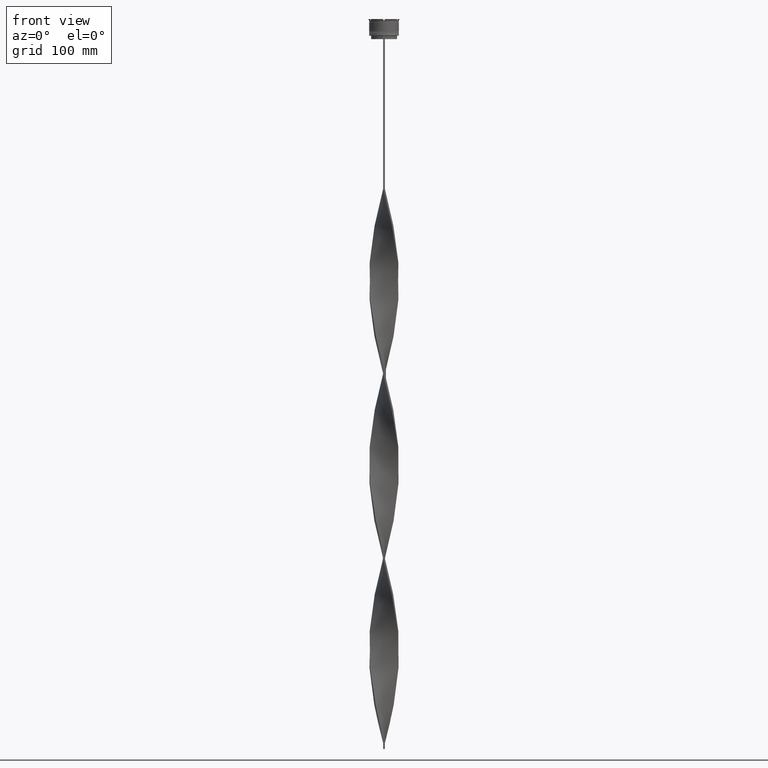
[diagram: clean part render]
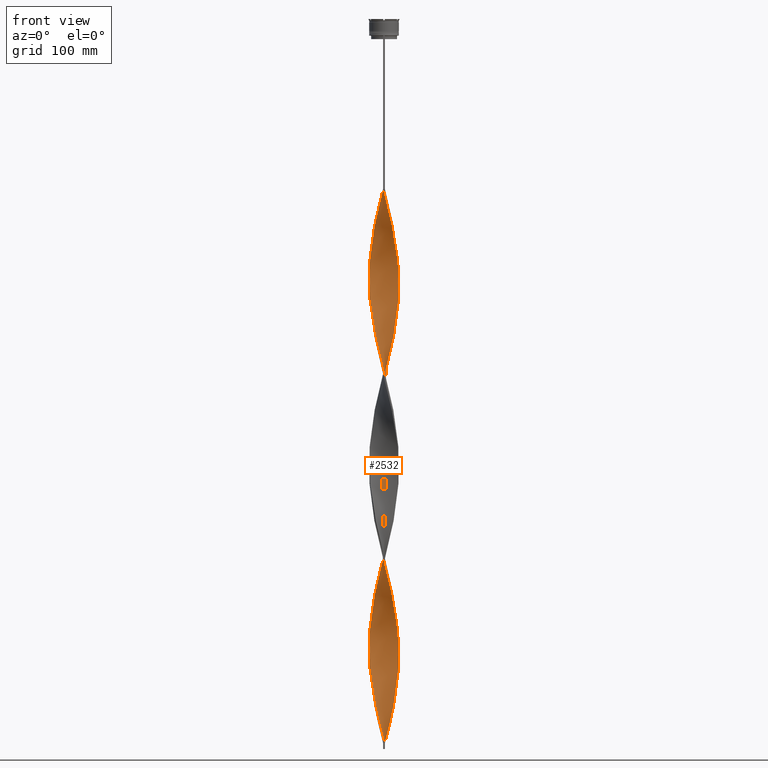
[diagram: same view with one face highlighted and labeled with its STEP entity id]
A machine part, front view. The second image highlights one B-rep face of the part: STEP entity #2532.
In plain terms, the highlighted face is a freeform B-spline surface patch.
Its self-contained STEP definition (entity closure, byte-faithful):
#6 = CARTESIAN_POINT ( 'NONE',  ( 12.52242699500038015, 0.03636144779521405246, -223.7733333333333405 ) ) ;
#15 = CARTESIAN_POINT ( 'NONE',  ( -0.8225793935679454050, 12.49543369160420347, -304.5466666666666811 ) ) ;
#21 = CARTESIAN_POINT ( 'NONE',  ( -12.41912662004790313, 1.605550994275040111, -211.3466666666666924 ) ) ;
#23 = CARTESIAN_POINT ( 'NONE',  ( -3.155646990963153264, -12.14393247619489813, -593.4666666666666970 ) ) ;
#28 = CARTESIAN_POINT ( 'NONE',  ( 11.94434152831508911, -3.842643539664263752, -518.9066666666665242 ) ) ;
#37 = CARTESIAN_POINT ( 'NONE',  ( -9.103565294674663022, -8.598697513321132746, -416.3866666666666561 ) ) ;
#43 = CARTESIAN_POINT ( 'NONE',  ( -12.41912662004790313, 1.605550994275040111, -522.0133333333334349 ) ) ;
#48 = CARTESIAN_POINT ( 'NONE',  ( 1.608725446465268050, -12.44368138276816538, -462.9866666666666788 ) ) ;
#58 = CARTESIAN_POINT ( 'NONE',  ( -10.15222897254094470, 7.331080881363965851, -348.0400000000000205 ) ) ;
#71 = CARTESIAN_POINT ( 'NONE',  ( -8.562581101809286110, 9.171445294657459613, -487.8400000000000887 ) ) ;
#76 = CARTESIAN_POINT ( 'NONE',  ( -10.10948352700888186, -7.389914939776783598, -410.1733333333334031 ) ) ;
#85 = CARTESIAN_POINT ( 'NONE',  ( -12.11996919947063311, -3.149420042465475689, -391.5333333333334167 ) ) ;
#95 = CARTESIAN_POINT ( 'NONE',  ( -10.61346148680155110, -6.692356773673695081, -556.1866666666668380 ) ) ;
#101 = CARTESIAN_POINT ( 'NONE',  ( -3.085069550408702010, -12.16205368295573130, -444.3466666666667493 ) ) ;
#110 = CARTESIAN_POINT ( 'NONE',  ( 3.904224544142286479, -11.89829948811665083, -472.3066666666667288 ) ) ;
#115 = CARTESIAN_POINT ( 'NONE',  ( -1.536433340670621872, 12.45281399955976553, -456.7733333333334258 ) ) ;
#118 = CARTESIAN_POINT ( 'NONE',  ( -10.95596916500943685, 6.064588993110946014, -503.3733333333334485 ) ) ;
#124 = CARTESIAN_POINT ( 'NONE',  ( 11.65644370790820794, -4.576004816908208817, -515.8000000000000682 ) ) ;
#133 = CARTESIAN_POINT ( 'NONE',  ( 9.103565294674666575, 8.598697513321130970, -571.7200000000000273 ) ) ;
#139 = CARTESIAN_POINT ( 'NONE',  ( 9.644549487540052368, -8.025949731984796998, -338.7200000000000273 ) ) ;
#154 = B_SPLINE_CURVE_WITH_KNOTS ( 'NONE', 3,
 ( #2453, #1369, #3615, #274 ),
 .UNSPECIFIED., .F., .F.,
 ( 4, 4 ),
 ( 0.000000000000000000, 1.000000000000000000 ),
 .UNSPECIFIED. ) ;
#155 = CARTESIAN_POINT ( 'NONE',  ( -8.562581101809286110, 9.171445294657459613, -177.1733333333333462 ) ) ;
#171 = CARTESIAN_POINT ( 'NONE',  ( -6.679150936304338870, 10.59251824497200900, -478.5200000000000387 ) ) ;
#173 = CARTESIAN_POINT ( 'NONE',  ( 12.52471466338928074, -0.7514828798033543755, -220.6666666666667140 ) ) ;
#181 = CARTESIAN_POINT ( 'NONE',  ( 1.536433340670619208, 12.45281399955976553, -605.8933333333335440 ) ) ;
#194 = CARTESIAN_POINT ( 'NONE',  ( 2.382186218714207993, 12.29380692948152998, -441.2400000000000091 ) ) ;
#204 = CARTESIAN_POINT ( 'NONE',  ( -3.085069550408701566, 12.16205368295573130, -152.3200000000000500 ) ) ;
#211 = CARTESIAN_POINT ( 'NONE',  ( 8.010112353542551134, -9.625518172214160728, -490.9466666666667152 ) ) ;
#216 = CARTESIAN_POINT ( 'NONE',  ( -8.615698626491363754, -9.121564618826681681, -568.6133333333334576 ) ) ;
#231 = CARTESIAN_POINT ( 'NONE',  ( -6.679150936304338870, 10.59251824497200900, -167.8533333333333530 ) ) ;
#253 = CARTESIAN_POINT ( 'NONE',  ( -6.076579735155670292, -10.97763101221075921, -270.3733333333333348 ) ) ;
#266 = CARTESIAN_POINT ( 'NONE',  ( 11.36854588750133388, -5.309366094152150772, -202.0266666666667277 ) ) ;
#269 = VERTEX_POINT ( 'NONE', #1031 ) ;
#274 = CARTESIAN_POINT ( 'NONE',  ( 0.7500000000000037748, -12.50000000000000000, -609.0000000000000000 ) ) ;
#275 = CARTESIAN_POINT ( 'NONE',  ( 5.364690916238544105, 11.31514875612458226, -428.8133333333333894 ) ) ;
#282 = CARTESIAN_POINT ( 'NONE',  ( 10.15222897254094292, -7.331080881363969404, -192.7066666666667061 ) ) ;
#289 = CARTESIAN_POINT ( 'NONE',  ( -12.52013932661148488, 0.8242057753937841458, -525.1200000000001182 ) ) ;
#290 = CARTESIAN_POINT ( 'NONE',  ( 10.61346148680155288, -6.692356773673691528, -195.8133333333333610 ) ) ;
#298 = CARTESIAN_POINT ( 'NONE',  ( -8.615698626491363754, -9.121564618826681681, -257.9466666666666583 ) ) ;
#299 = CARTESIAN_POINT ( 'NONE',  ( -0.7499999999999997780, -12.50000000000000000, -143.0000000000000284 ) ) ;
#300 = CARTESIAN_POINT ( 'NONE',  ( -0.03643334067061931858, -12.54718600044023979, -295.2266666666667447 ) ) ;
#310 = CARTESIAN_POINT ( 'NONE',  ( 12.41912662004790313, 1.605550994275044108, -229.9866666666666788 ) ) ;
#318 = CARTESIAN_POINT ( 'NONE',  ( -1.608725446465267161, -12.44368138276816538, -599.6799999999999500 ) ) ;
#326 = CARTESIAN_POINT ( 'NONE',  ( 9.644549487540052368, -8.025949731984796998, -338.7200000000000273 ) ) ;
#333 = CARTESIAN_POINT ( 'NONE',  ( 12.31811391348432316, 2.386896213156300295, -233.0933333333333906 ) ) ;
#341 = CARTESIAN_POINT ( 'NONE',  ( 11.33752076354115701, 5.375297838653134264, -245.5200000000000387 ) ) ;
#345 = CARTESIAN_POINT ( 'NONE',  ( -6.076579735155671180, -10.97763101221075743, -270.3733333333333348 ) ) ;
#348 = CARTESIAN_POINT ( 'NONE',  ( 4.585052370405619193, -11.67949051451277143, -313.8666666666666742 ) ) ;
#353 = CARTESIAN_POINT ( 'NONE',  ( 9.103565294674666575, 8.598697513321130970, -261.0533333333333417 ) ) ;
#360 = CARTESIAN_POINT ( 'NONE',  ( -5.298889272974662390, -11.34611265908963595, -435.0266666666667561 ) ) ;
#364 = CARTESIAN_POINT ( 'NONE',  ( -3.835060960407158159, 11.92077209873424870, -155.4266666666666765 ) ) ;
#366 = CARTESIAN_POINT ( 'NONE',  ( 8.010112353542544028, 9.625518172214164281, -416.3866666666666561 ) ) ;
#374 = VECTOR ( 'NONE', #2800, 1000.000000000000000 ) ;
#375 = CARTESIAN_POINT ( 'NONE',  ( -8.010112353542551134, 9.625518172214160728, -335.6133333333334008 ) ) ;
#385 = CARTESIAN_POINT ( 'NONE',  ( -1.536433340670620540, -12.45281399955976553, -450.5600000000000023 ) ) ;
#394 = CARTESIAN_POINT ( 'NONE',  ( -8.562581101809284334, 9.171445294657459613, -177.1733333333333462 ) ) ;
#396 = CARTESIAN_POINT ( 'NONE',  ( -9.690996458280338288, -7.969804989054246391, -562.4000000000000909 ) ) ;
#402 = CARTESIAN_POINT ( 'NONE',  ( 10.15222897254094292, -7.331080881363969404, -503.3733333333334485 ) ) ;
#411 = CARTESIAN_POINT ( 'NONE',  ( -10.99100368715144427, 6.000861433912916709, -354.2533333333333871 ) ) ;
#417 = CARTESIAN_POINT ( 'NONE',  ( -0.8225793935679430735, -12.49543369160420347, -602.7866666666667470 ) ) ;
#422 = CARTESIAN_POINT ( 'NONE',  ( 12.33176776802354802, -2.315320201071886075, -525.1200000000001182 ) ) ;
#432 = CARTESIAN_POINT ( 'NONE',  ( 5.298889272974660614, 11.34611265908963595, -279.6933333333333280 ) ) ;
#438 = CARTESIAN_POINT ( 'NONE',  ( -8.615698626491363754, -9.121564618826681681, -568.6133333333333439 ) ) ;
#442 = CARTESIAN_POINT ( 'NONE',  ( 12.52013932661148488, 0.8242057753937857001, -537.5466666666667379 ) ) ;
#451 = CARTESIAN_POINT ( 'NONE',  ( -9.644549487540052368, -8.025949731984796998, -413.2800000000000864 ) ) ;
#465 = CARTESIAN_POINT ( 'NONE',  ( -10.57441756647771847, 6.753880147568762204, -500.2666666666666515 ) ) ;
#470 = CARTESIAN_POINT ( 'NONE',  ( -12.33176776802354802, 2.315320201071879413, -369.7866666666666333 ) ) ;
#480 = CARTESIAN_POINT ( 'NONE',  ( 11.62967262449904915, 4.643620855213894671, -553.0800000000000409 ) ) ;
#485 = CARTESIAN_POINT ( 'NONE',  ( 4.652802097321410812, 11.65266650003840887, -431.9200000000000728 ) ) ;
#497 = CARTESIAN_POINT ( 'NONE',  ( 12.31811391348432316, 2.386896213156300295, -543.7599999999999909 ) ) ;
#506 = CARTESIAN_POINT ( 'NONE',  ( 12.41912662004790313, 1.605550994275044108, -540.6533333333334213 ) ) ;
#510 = CARTESIAN_POINT ( 'NONE',  ( 11.65644370790820972, 4.576004816908206152, -391.5333333333334167 ) ) ;
#520 = CARTESIAN_POINT ( 'NONE',  ( -8.010112353542547581, -9.625518172214162504, -261.0533333333333417 ) ) ;
#534 = CARTESIAN_POINT ( 'NONE',  ( 12.42824121570641083, 1.533401540437624888, -379.1066666666666833 ) ) ;
#548 = CARTESIAN_POINT ( 'NONE',  ( -12.52013932661148665, 0.8242057753937841458, -214.4533333333333758 ) ) ;
#557 = CARTESIAN_POINT ( 'NONE',  ( 2.310751445539659610, 12.30743384125774575, -602.7866666666667470 ) ) ;
#562 = CARTESIAN_POINT ( 'NONE',  ( 11.62967262449905270, -4.643620855213887566, -354.2533333333333871 ) ) ;
#570 = CARTESIAN_POINT ( 'NONE',  ( -7.954078399437124247, 9.671873490467490342, -174.0666666666666629 ) ) ;
#577 = CARTESIAN_POINT ( 'NONE',  ( 5.298889272974660614, 11.34611265908963595, -590.3600000000000136 ) ) ;
#583 = CARTESIAN_POINT ( 'NONE',  ( 0.03643334067062083126, 12.54718600044023979, -450.5600000000000023 ) ) ;
#592 = CARTESIAN_POINT ( 'NONE',  ( 7.345575697064967713, 10.17230168627752107, -581.0400000000000773 ) ) ;
#597 = CARTESIAN_POINT ( 'NONE',  ( 0.03643334067062224679, -12.54718600044023979, -146.1066666666667118 ) ) ;
#617 = CARTESIAN_POINT ( 'NONE',  ( -7.404526080593735848, -10.12947172560163978, -264.1600000000000819 ) ) ;
#632 = CARTESIAN_POINT ( 'NONE',  ( 12.52242699500038015, 0.03636144779521405246, -223.7733333333333405 ) ) ;
#639 = CARTESIAN_POINT ( 'NONE',  ( 7.954078399437126912, -9.671873490467486789, -329.4000000000000341 ) ) ;
#648 = CARTESIAN_POINT ( 'NONE',  ( -0.7499999999999997780, -12.50000000000000000, -143.0000000000000284 ) ) ;
#660 = CARTESIAN_POINT ( 'NONE',  ( -11.94434152831508911, -3.842643539664264640, -233.0933333333333906 ) ) ;
#662 = CARTESIAN_POINT ( 'NONE',  ( -1.536433340670622094, 12.45281399955976553, -456.7733333333334258 ) ) ;
#669 = CARTESIAN_POINT ( 'NONE',  ( 11.65644370790820794, -4.576004816908208817, -205.1333333333333542 ) ) ;
#675 = CARTESIAN_POINT ( 'NONE',  ( -11.94434152831508911, -3.842643539664264640, -543.7599999999999909 ) ) ;
#677 = CARTESIAN_POINT ( 'NONE',  ( 3.155646990963155929, -12.14393247619489813, -158.5333333333333883 ) ) ;
#686 = CARTESIAN_POINT ( 'NONE',  ( -9.153347542385850133, -8.545684803940464036, -254.8400000000000034 ) ) ;
#688 = CARTESIAN_POINT ( 'NONE',  ( 11.33752076354115879, -5.375297838653132487, -351.1466666666667606 ) ) ;
#698 = CARTESIAN_POINT ( 'NONE',  ( 6.740552907874703514, -10.55355136890619860, -174.0666666666666629 ) ) ;
#711 = CARTESIAN_POINT ( 'NONE',  ( -10.10948352700888364, 7.389914939776779157, -186.4933333333333394 ) ) ;
#713 = CARTESIAN_POINT ( 'NONE',  ( 3.155646990963148379, 12.14393247619489813, -438.1333333333334394 ) ) ;
#714 = VERTEX_POINT ( 'NONE', #3447 ) ;
#719 = CARTESIAN_POINT ( 'NONE',  ( 3.904224544142286479, -11.89829948811665083, -161.6400000000000148 ) ) ;
#729 = CARTESIAN_POINT ( 'NONE',  ( -9.690996458280336512, 7.969804989054249056, -344.9333333333334508 ) ) ;
#734 = CARTESIAN_POINT ( 'NONE',  ( -9.644549487540052368, 8.025949731984796998, -183.3866666666666845 ) ) ;
#736 = CARTESIAN_POINT ( 'NONE',  ( -1.608725446465267161, -12.44368138276816538, -289.0133333333333212 ) ) ;
#741 = CARTESIAN_POINT ( 'NONE',  ( -6.740552907874707067, 10.55355136890619505, -329.4000000000000341 ) ) ;
#749 = CARTESIAN_POINT ( 'NONE',  ( 6.679150936304337982, 10.59251824497200900, -273.4800000000000750 ) ) ;
#754 = CARTESIAN_POINT ( 'NONE',  ( -11.65644370790820794, -4.576004816908209705, -236.2000000000000171 ) ) ;
#764 = CARTESIAN_POINT ( 'NONE',  ( 5.364690916238544105, -11.31514875612458226, -167.8533333333333530 ) ) ;
#773 = CARTESIAN_POINT ( 'NONE',  ( -9.153347542385850133, 8.545684803940460483, -341.8266666666667106 ) ) ;
#781 = CARTESIAN_POINT ( 'NONE',  ( -12.42824121570641083, -1.533401540437621113, -534.4400000000000546 ) ) ;
#787 = CARTESIAN_POINT ( 'NONE',  ( 3.904224544142286479, -11.89829948811665083, -472.3066666666667288 ) ) ;
#796 = CARTESIAN_POINT ( 'NONE',  ( 6.012726175543709140, 11.01273480366650048, -276.5866666666667584 ) ) ;
#809 = CARTESIAN_POINT ( 'NONE',  ( -1.536433340670620762, -12.45281399955976553, -450.5600000000000023 ) ) ;
#819 = CARTESIAN_POINT ( 'NONE',  ( -12.13805464816931767, 3.078981870368074247, -366.6800000000000068 ) ) ;
#826 = CARTESIAN_POINT ( 'NONE',  ( -12.52471466338928074, -0.7514828798033584834, -531.3333333333334849 ) ) ;
#831 = CARTESIAN_POINT ( 'NONE',  ( -10.57441756647771136, -6.753880147568771086, -407.0666666666666629 ) ) ;
#848 = CARTESIAN_POINT ( 'NONE',  ( -12.11996919947063134, 3.149420042465478353, -515.8000000000000682 ) ) ;
#859 = CARTESIAN_POINT ( 'NONE',  ( 2.382186218714211989, -12.29380692948152820, -466.0933333333333621 ) ) ;
#868 = CARTESIAN_POINT ( 'NONE',  ( 6.740552907874703514, -10.55355136890619860, -484.7333333333333485 ) ) ;
#872 = CARTESIAN_POINT ( 'NONE',  ( 12.33176776802354624, 2.315320201071885187, -382.2133333333334235 ) ) ;
#882 = EDGE_CURVE ( 'NONE', #269, #714, #154, .T. ) ;
#884 = CARTESIAN_POINT ( 'NONE',  ( -6.012726175543712692, 11.01273480366649871, -164.7466666666667265 ) ) ;
#894 = CARTESIAN_POINT ( 'NONE',  ( 8.562581101809280781, 9.171445294657461389, -574.8266666666667106 ) ) ;
#898 = CARTESIAN_POINT ( 'NONE',  ( 3.155646990963147935, 12.14393247619489991, -438.1333333333334394 ) ) ;
#907 = CARTESIAN_POINT ( 'NONE',  ( 8.562581101809282558, 9.171445294657461389, -574.8266666666665969 ) ) ;
#916 = CARTESIAN_POINT ( 'NONE',  ( 3.085069550408700678, 12.16205368295573130, -599.6799999999999500 ) ) ;
#921 = CARTESIAN_POINT ( 'NONE',  ( -10.57441756647771847, 6.753880147568762204, -500.2666666666666515 ) ) ;
#935 = CARTESIAN_POINT ( 'NONE',  ( -11.65644370790820794, -4.576004816908209705, -236.2000000000000171 ) ) ;
#943 = CARTESIAN_POINT ( 'NONE',  ( 11.94434152831508911, -3.842643539664263752, -518.9066666666666379 ) ) ;
#944 = EDGE_CURVE ( 'NONE', #1322, #2219, #3663, .T. ) ;
#949 = CARTESIAN_POINT ( 'NONE',  ( 6.012726175543710916, -11.01273480366649871, -320.0800000000000978 ) ) ;
#957 = CARTESIAN_POINT ( 'NONE',  ( 7.954078399437126023, 9.671873490467488566, -577.9333333333333940 ) ) ;
#972 = CARTESIAN_POINT ( 'NONE',  ( -12.42824121570641083, -1.533401540437621113, -534.4400000000000546 ) ) ;
#981 = CARTESIAN_POINT ( 'NONE',  ( -10.10948352700888364, 7.389914939776779157, -186.4933333333333394 ) ) ;
#1008 = CARTESIAN_POINT ( 'NONE',  ( 12.52013932661148665, -0.8242057753937777065, -369.7866666666666333 ) ) ;
#1021 = CARTESIAN_POINT ( 'NONE',  ( -5.364690916238543217, -11.31514875612458226, -584.1466666666666470 ) ) ;
#1031 = CARTESIAN_POINT ( 'NONE',  ( 0.7499999999999957812, 12.50000000000000000, -609.0000000000000000 ) ) ;
#1032 = CARTESIAN_POINT ( 'NONE',  ( -8.010112353542547581, -9.625518172214162504, -261.0533333333333417 ) ) ;
#1034 = CARTESIAN_POINT ( 'NONE',  ( -5.298889272974663278, 11.34611265908963418, -472.3066666666667288 ) ) ;
#1041 = CARTESIAN_POINT ( 'NONE',  ( 12.52471466338928074, -0.7514828798033543755, -220.6666666666666856 ) ) ;
#1056 = CARTESIAN_POINT ( 'NONE',  ( -0.03643334067061931858, -12.54718600044023979, -295.2266666666667447 ) ) ;
#1058 = CARTESIAN_POINT ( 'NONE',  ( 10.95596916500943863, -6.064588993110942461, -348.0400000000000205 ) ) ;
#1065 = CARTESIAN_POINT ( 'NONE',  ( 6.076579735155670292, -10.97763101221075921, -170.9600000000000080 ) ) ;
#1073 = CARTESIAN_POINT ( 'NONE',  ( -12.41912662004790313, 1.605550994275040111, -522.0133333333334349 ) ) ;
#1075 = CARTESIAN_POINT ( 'NONE',  ( 5.364690916238544105, -11.31514875612458226, -167.8533333333333530 ) ) ;
#1081 = CARTESIAN_POINT ( 'NONE',  ( 3.835060960407161268, -11.92077209873424870, -310.7600000000000477 ) ) ;
#1083 = CARTESIAN_POINT ( 'NONE',  ( 12.13805464816931412, 3.078981870368080909, -385.3199999999999932 ) ) ;
#1094 = CARTESIAN_POINT ( 'NONE',  ( 10.10948352700888364, 7.389914939776780933, -254.8400000000000034 ) ) ;
#1104 = CARTESIAN_POINT ( 'NONE',  ( 10.57441756647771847, 6.753880147568762204, -251.7333333333334338 ) ) ;
#1110 = CARTESIAN_POINT ( 'NONE',  ( -1.536433340670621872, 12.45281399955976553, -146.1066666666667118 ) ) ;
#1112 = CARTESIAN_POINT ( 'NONE',  ( 7.345575697064968601, -10.17230168627751929, -326.2933333333333508 ) ) ;
#1117 = CARTESIAN_POINT ( 'NONE',  ( -5.364690916238544993, 11.31514875612458226, -323.1866666666667243 ) ) ;
#1125 = CARTESIAN_POINT ( 'NONE',  ( -0.7499999999999997780, -12.50000000000000000, -453.6666666666667425 ) ) ;
#1131 = CARTESIAN_POINT ( 'NONE',  ( -12.13805464816931412, -3.078981870368076912, -229.9866666666666788 ) ) ;
#1133 = CARTESIAN_POINT ( 'NONE',  ( -3.904224544142283815, -11.89829948811665261, -590.3600000000000136 ) ) ;
#1138 = CARTESIAN_POINT ( 'NONE',  ( -10.15222897254094470, 7.331080881363965851, -348.0400000000000205 ) ) ;
#1145 = CARTESIAN_POINT ( 'NONE',  ( -10.61346148680155110, 6.692356773673693304, -351.1466666666667038 ) ) ;
#1150 = CARTESIAN_POINT ( 'NONE',  ( -11.92182448545694129, 3.911943871774655079, -512.6933333333334986 ) ) ;
#1160 = CARTESIAN_POINT ( 'NONE',  ( 5.364690916238544105, -11.31514875612458226, -478.5200000000000387 ) ) ;
#1170 = CARTESIAN_POINT ( 'NONE',  ( 7.345575697064967713, 10.17230168627752107, -270.3733333333333348 ) ) ;
#1183 = CARTESIAN_POINT ( 'NONE',  ( 12.52471466338928074, -0.7514828798033543755, -531.3333333333334849 ) ) ;
#1192 = CARTESIAN_POINT ( 'NONE',  ( 9.644549487540050592, 8.025949731984798774, -257.9466666666666583 ) ) ;
#1198 = CARTESIAN_POINT ( 'NONE',  ( -6.076579735155670292, -10.97763101221075921, -581.0400000000000773 ) ) ;
#1203 = CARTESIAN_POINT ( 'NONE',  ( -12.52471466338928074, 0.7514828798033587054, -376.0000000000000568 ) ) ;
#1213 = CARTESIAN_POINT ( 'NONE',  ( -7.345575697064964160, -10.17230168627752107, -425.7066666666667061 ) ) ;
#1226 = CARTESIAN_POINT ( 'NONE',  ( -8.562581101809284334, -9.171445294657461389, -419.4933333333333394 ) ) ;
#1237 = CARTESIAN_POINT ( 'NONE',  ( 12.11996919947063134, 3.149420042465480130, -546.8666666666666742 ) ) ;
#1246 = CARTESIAN_POINT ( 'NONE',  ( 11.92182448545694129, -3.911943871774655079, -357.3600000000000705 ) ) ;
#1254 = CARTESIAN_POINT ( 'NONE',  ( -9.644549487540052368, -8.025949731984796998, -413.2800000000000864 ) ) ;
#1268 = CARTESIAN_POINT ( 'NONE',  ( 12.52013932661148488, -0.8242057753937777065, -369.7866666666666902 ) ) ;
#1278 = CARTESIAN_POINT ( 'NONE',  ( -12.13805464816931412, -3.078981870368076912, -229.9866666666666788 ) ) ;
#1286 = CARTESIAN_POINT ( 'NONE',  ( 9.153347542385850133, -8.545684803940462260, -497.1600000000000250 ) ) ;
#1290 = CARTESIAN_POINT ( 'NONE',  ( 10.61346148680154755, 6.692356773673698633, -400.8533333333334099 ) ) ;
#1300 = CARTESIAN_POINT ( 'NONE',  ( -11.94434152831508911, -3.842643539664265084, -233.0933333333333906 ) ) ;
#1307 = CARTESIAN_POINT ( 'NONE',  ( 7.404526080593739401, -10.12947172560163800, -487.8400000000000887 ) ) ;
#1314 = CARTESIAN_POINT ( 'NONE',  ( 8.562581101809287887, -9.171445294657457836, -332.5066666666667743 ) ) ;
#1322 = VERTEX_POINT ( 'NONE', #3510 ) ;
#1327 = CARTESIAN_POINT ( 'NONE',  ( 9.103565294674666575, 8.598697513321130970, -571.7200000000000273 ) ) ;
#1334 = CARTESIAN_POINT ( 'NONE',  ( 10.15222897254094292, -7.331080881363969404, -503.3733333333334485 ) ) ;
#1348 = CARTESIAN_POINT ( 'NONE',  ( 11.33752076354115701, 5.375297838653134264, -556.1866666666668380 ) ) ;
#1369 = CARTESIAN_POINT ( 'NONE',  ( 0.7499999999999984457, 4.166666666666667851, -609.0000000000000000 ) ) ;
#1370 = CARTESIAN_POINT ( 'NONE',  ( -3.904224544142283815, -11.89829948811665261, -279.6933333333333280 ) ) ;
#1376 = CARTESIAN_POINT ( 'NONE',  ( 1.608725446465268050, -12.44368138276816538, -152.3200000000000500 ) ) ;
#1384 = CARTESIAN_POINT ( 'NONE',  ( -11.36854588750133388, -5.309366094152152549, -549.9733333333334713 ) ) ;
#1400 = CARTESIAN_POINT ( 'NONE',  ( -0.7499999999999997780, 12.50000000000000000, -453.6666666666667425 ) ) ;
#1408 = CARTESIAN_POINT ( 'NONE',  ( 3.085069550408700678, 12.16205368295573130, -289.0133333333333212 ) ) ;
#1415 = CARTESIAN_POINT ( 'NONE',  ( 12.31811391348432316, 2.386896213156300739, -233.0933333333333906 ) ) ;
#1422 = CARTESIAN_POINT ( 'NONE',  ( -10.61346148680154933, -6.692356773673695081, -245.5200000000000387 ) ) ;
#1424 = CARTESIAN_POINT ( 'NONE',  ( 1.536433340670621872, -12.45281399955976553, -301.4400000000000546 ) ) ;
#1432 = CARTESIAN_POINT ( 'NONE',  ( 8.615698626491365530, -9.121564618826679904, -183.3866666666666845 ) ) ;
#1440 = CARTESIAN_POINT ( 'NONE',  ( 7.404526080593739401, -10.12947172560163800, -177.1733333333333462 ) ) ;
#1445 = CARTESIAN_POINT ( 'NONE',  ( -10.99100368715144072, -6.000861433912923815, -242.4133333333333553 ) ) ;
#1447 = CARTESIAN_POINT ( 'NONE',  ( 12.52242699500038015, -0.03636144779521166548, -372.8933333333333735 ) ) ;
#1454 = CARTESIAN_POINT ( 'NONE',  ( 4.652802097321417918, -11.65266650003840709, -164.7466666666667265 ) ) ;
#1461 = CARTESIAN_POINT ( 'NONE',  ( 2.382186218714211989, -12.29380692948152820, -155.4266666666666765 ) ) ;
#1468 = CARTESIAN_POINT ( 'NONE',  ( 0.03643334067062082432, 12.54718600044023979, -450.5600000000000023 ) ) ;
#1478 = CARTESIAN_POINT ( 'NONE',  ( -4.652802097321417030, 11.65266650003840709, -320.0800000000000978 ) ) ;
#1480 = EDGE_CURVE ( 'NONE', #1322, #269, #2796, .T. ) ;
#1488 = CARTESIAN_POINT ( 'NONE',  ( -8.562581101809282558, -9.171445294657461389, -419.4933333333333962 ) ) ;
#1493 = CARTESIAN_POINT ( 'NONE',  ( -12.31811391348432316, 2.386896213156299407, -208.2400000000000659 ) ) ;
#1495 = CARTESIAN_POINT ( 'NONE',  ( -3.085069550408701566, 12.16205368295573130, -462.9866666666666788 ) ) ;
#1500 = CARTESIAN_POINT ( 'NONE',  ( -9.153347542385850133, 8.545684803940460483, -341.8266666666667106 ) ) ;
#1509 = CARTESIAN_POINT ( 'NONE',  ( -3.904224544142290476, 11.89829948811664906, -316.9733333333333576 ) ) ;
#1514 = CARTESIAN_POINT ( 'NONE',  ( -11.33752076354116056, 5.375297838653130711, -506.4800000000001319 ) ) ;
#1516 = CARTESIAN_POINT ( 'NONE',  ( -11.94434152831508911, -3.842643539664265084, -543.7599999999999909 ) ) ;
#1521 = CARTESIAN_POINT ( 'NONE',  ( -5.298889272974662390, -11.34611265908963595, -435.0266666666667561 ) ) ;
#1530 = CARTESIAN_POINT ( 'NONE',  ( -12.52242699500038015, -0.03636144779521806314, -379.1066666666666833 ) ) ;
#1544 = CARTESIAN_POINT ( 'NONE',  ( -2.310751445539655613, -12.30743384125774753, -447.4533333333333758 ) ) ;
#1556 = CARTESIAN_POINT ( 'NONE',  ( -11.94434152831509088, 3.842643539664259755, -363.5733333333334372 ) ) ;
#1566 = CARTESIAN_POINT ( 'NONE',  ( -9.153347542385850133, -8.545684803940464036, -565.5066666666666606 ) ) ;
#1571 = CARTESIAN_POINT ( 'NONE',  ( 12.11996919947063134, 3.149420042465480130, -546.8666666666666742 ) ) ;
#1580 = CARTESIAN_POINT ( 'NONE',  ( -4.585052370405607647, -11.67949051451277320, -438.1333333333334394 ) ) ;
#1587 = CARTESIAN_POINT ( 'NONE',  ( -12.33176776802354624, -2.315320201071887407, -537.5466666666667379 ) ) ;
#1593 = CARTESIAN_POINT ( 'NONE',  ( 0.8225793935679449609, -12.49543369160420347, -459.8799999999999955 ) ) ;
#1603 = CARTESIAN_POINT ( 'NONE',  ( 12.33176776802354624, -2.315320201071885631, -525.1200000000001182 ) ) ;
#1607 = CARTESIAN_POINT ( 'NONE',  ( -4.585052370405614752, 11.67949051451277143, -469.2000000000001023 ) ) ;
#1615 = CARTESIAN_POINT ( 'NONE',  ( -7.345575697064964160, -10.17230168627752107, -425.7066666666667629 ) ) ;
#1627 = CARTESIAN_POINT ( 'NONE',  ( 6.012726175543709140, 11.01273480366650048, -587.2533333333335577 ) ) ;
#1634 = CARTESIAN_POINT ( 'NONE',  ( 11.33752076354115879, -5.375297838653132487, -351.1466666666667038 ) ) ;
#1642 = CARTESIAN_POINT ( 'NONE',  ( -6.740552907874705291, -10.55355136890619683, -267.2666666666667084 ) ) ;
#1650 = CARTESIAN_POINT ( 'NONE',  ( 9.690996458280338288, -7.969804989054245503, -500.2666666666666515 ) ) ;
#1655 = CARTESIAN_POINT ( 'NONE',  ( 12.52471466338928074, 0.7514828798033541535, -376.0000000000000568 ) ) ;
#1660 = CARTESIAN_POINT ( 'NONE',  ( 11.94434152831508911, -3.842643539664263752, -208.2400000000000659 ) ) ;
#1666 = CARTESIAN_POINT ( 'NONE',  ( -7.345575697064967713, 10.17230168627752107, -170.9600000000000080 ) ) ;
#1678 = CARTESIAN_POINT ( 'NONE',  ( 7.345575697064968601, -10.17230168627751929, -326.2933333333333508 ) ) ;
#1687 = CARTESIAN_POINT ( 'NONE',  ( -11.62967262449904915, 4.643620855213893783, -198.9200000000000159 ) ) ;
#1695 = CARTESIAN_POINT ( 'NONE',  ( 10.95596916500943685, 6.064588993110950454, -559.2933333333334076 ) ) ;
#1701 = CARTESIAN_POINT ( 'NONE',  ( -0.03643334067061931858, -12.54718600044023979, -605.8933333333335440 ) ) ;
#1714 = CARTESIAN_POINT ( 'NONE',  ( -9.644549487540052368, 8.025949731984796998, -183.3866666666666845 ) ) ;
#1734 = CARTESIAN_POINT ( 'NONE',  ( -5.364690916238543217, -11.31514875612458226, -273.4800000000000750 ) ) ;
#1741 = FACE_OUTER_BOUND ( 'NONE', #2966, .T. ) ;
#1748 = CARTESIAN_POINT ( 'NONE',  ( -2.382186218714212433, -12.29380692948152820, -596.5733333333333803 ) ) ;
#1758 = CARTESIAN_POINT ( 'NONE',  ( 9.103565294674670128, -8.598697513321129193, -335.6133333333334008 ) ) ;
#1764 = CARTESIAN_POINT ( 'NONE',  ( 11.36854588750133388, -5.309366094152150772, -202.0266666666667277 ) ) ;
#1772 = CARTESIAN_POINT ( 'NONE',  ( 12.33176776802354624, -2.315320201071885631, -214.4533333333333758 ) ) ;
#1783 = CARTESIAN_POINT ( 'NONE',  ( -3.155646990963152820, -12.14393247619489813, -282.8000000000000682 ) ) ;
#1786 = CARTESIAN_POINT ( 'NONE',  ( -6.679150936304338870, 10.59251824497200900, -478.5200000000000387 ) ) ;
#1793 = CARTESIAN_POINT ( 'NONE',  ( 12.11996919947063134, 3.149420042465480130, -236.2000000000000171 ) ) ;
#1807 = CARTESIAN_POINT ( 'NONE',  ( -6.740552907874705291, -10.55355136890619683, -267.2666666666667084 ) ) ;
#1809 = CARTESIAN_POINT ( 'NONE',  ( 11.94434152831508911, 3.842643539664265973, -388.4266666666667334 ) ) ;
#1816 = CARTESIAN_POINT ( 'NONE',  ( 7.345575697064967713, 10.17230168627752107, -270.3733333333333348 ) ) ;
#1823 = CARTESIAN_POINT ( 'NONE',  ( 4.652802097321417918, -11.65266650003840709, -164.7466666666666981 ) ) ;
#1829 = CARTESIAN_POINT ( 'NONE',  ( -3.085069550408701566, 12.16205368295573130, -152.3200000000000500 ) ) ;
#1831 = CARTESIAN_POINT ( 'NONE',  ( 8.562581101809289663, -9.171445294657457836, -332.5066666666668311 ) ) ;
#1836 = CARTESIAN_POINT ( 'NONE',  ( -3.155646990963159482, 12.14393247619489813, -313.8666666666666742 ) ) ;
#1845 = CARTESIAN_POINT ( 'NONE',  ( -3.835060960407154163, -11.92077209873424870, -441.2400000000000091 ) ) ;
#1853 = CARTESIAN_POINT ( 'NONE',  ( -11.33752076354116056, 5.375297838653130711, -195.8133333333333610 ) ) ;
#1855 = CARTESIAN_POINT ( 'NONE',  ( 10.61346148680154933, 6.692356773673698633, -400.8533333333334099 ) ) ;
#1866 = CARTESIAN_POINT ( 'NONE',  ( 12.33176776802354802, -2.315320201071886075, -214.4533333333333758 ) ) ;
#1877 = CARTESIAN_POINT ( 'NONE',  ( 3.835060960407158603, 11.92077209873424870, -285.9066666666666947 ) ) ;
#1881 = CARTESIAN_POINT ( 'NONE',  ( -10.57441756647771847, 6.753880147568762204, -189.6000000000000227 ) ) ;
#1883 = CARTESIAN_POINT ( 'NONE',  ( -11.36854588750133388, -5.309366094152152549, -549.9733333333333576 ) ) ;
#1890 = CARTESIAN_POINT ( 'NONE',  ( 10.61346148680155466, -6.692356773673691528, -506.4800000000001887 ) ) ;
#1900 = CARTESIAN_POINT ( 'NONE',  ( 8.562581101809280781, 9.171445294657461389, -264.1600000000000819 ) ) ;
#1906 = CARTESIAN_POINT ( 'NONE',  ( -0.03643334067061931858, -12.54718600044023979, -605.8933333333335440 ) ) ;
#1911 = CARTESIAN_POINT ( 'NONE',  ( 4.652802097321417918, -11.65266650003840709, -475.4133333333333553 ) ) ;
#1919 = CARTESIAN_POINT ( 'NONE',  ( -1.608725446465269826, 12.44368138276816360, -307.6533333333333644 ) ) ;
#1934 = CARTESIAN_POINT ( 'NONE',  ( 11.36854588750133388, -5.309366094152150772, -512.6933333333333849 ) ) ;
#1945 = CARTESIAN_POINT ( 'NONE',  ( -3.155646990963159926, 12.14393247619489813, -313.8666666666666742 ) ) ;
#1955 = CARTESIAN_POINT ( 'NONE',  ( -9.103565294674670128, 8.598697513321129193, -490.9466666666667152 ) ) ;
#1960 = CARTESIAN_POINT ( 'NONE',  ( -12.11996919947063311, -3.149420042465475689, -391.5333333333334167 ) ) ;
#1971 = CARTESIAN_POINT ( 'NONE',  ( 12.52242699500038015, 0.03636144779521405246, -534.4400000000000546 ) ) ;
#1975 = CARTESIAN_POINT ( 'NONE',  ( -2.310751445539661386, 12.30743384125774575, -459.8799999999999955 ) ) ;
#1978 = CARTESIAN_POINT ( 'NONE',  ( -7.954078399437124247, 9.671873490467490342, -484.7333333333333485 ) ) ;
#1983 = CARTESIAN_POINT ( 'NONE',  ( -12.31811391348432316, -2.386896213156301183, -388.4266666666667334 ) ) ;
#1992 = CARTESIAN_POINT ( 'NONE',  ( 2.382186218714211989, -12.29380692948152820, -466.0933333333333621 ) ) ;
#1996 = CARTESIAN_POINT ( 'NONE',  ( -8.562581101809284334, 9.171445294657459613, -487.8400000000000887 ) ) ;
#2004 = CARTESIAN_POINT ( 'NONE',  ( -9.690996458280338288, -7.969804989054246391, -251.7333333333334338 ) ) ;
#2025 = CARTESIAN_POINT ( 'NONE',  ( 0.8225793935679390767, 12.49543369160420170, -447.4533333333333758 ) ) ;
#2034 = CARTESIAN_POINT ( 'NONE',  ( 6.012726175543710028, 11.01273480366650048, -587.2533333333335577 ) ) ;
#2043 = CARTESIAN_POINT ( 'NONE',  ( 1.608725446465268050, -12.44368138276816538, -462.9866666666667356 ) ) ;
#2049 = CARTESIAN_POINT ( 'NONE',  ( 7.954078399437126912, -9.671873490467486789, -329.4000000000000341 ) ) ;
#2057 = CARTESIAN_POINT ( 'NONE',  ( 10.57441756647771847, 6.753880147568762204, -562.4000000000000909 ) ) ;
#2070 = CARTESIAN_POINT ( 'NONE',  ( -3.085069550408701566, 12.16205368295573130, -462.9866666666667356 ) ) ;
#2078 = CARTESIAN_POINT ( 'NONE',  ( 0.7499999999999957812, 12.50000000000000000, -609.0000000000000000 ) ) ;
#2107 = CARTESIAN_POINT ( 'NONE',  ( -12.41912662004790313, 1.605550994275040111, -211.3466666666666924 ) ) ;
#2121 = CARTESIAN_POINT ( 'NONE',  ( -9.153347542385850133, -8.545684803940464036, -565.5066666666666606 ) ) ;
#2131 = CARTESIAN_POINT ( 'NONE',  ( 3.085069550408703343, -12.16205368295572953, -307.6533333333334213 ) ) ;
#2145 = CARTESIAN_POINT ( 'NONE',  ( -10.99100368715144072, -6.000861433912923815, -553.0800000000000409 ) ) ;
#2146 = CARTESIAN_POINT ( 'NONE',  ( 8.615698626491365530, -9.121564618826679904, -183.3866666666666845 ) ) ;
#2152 = CARTESIAN_POINT ( 'NONE',  ( -4.652802097321415253, -11.65266650003840887, -276.5866666666667584 ) ) ;
#2154 = CARTESIAN_POINT ( 'NONE',  ( -0.8225793935679430735, -12.49543369160420347, -292.1200000000000614 ) ) ;
#2161 = CARTESIAN_POINT ( 'NONE',  ( 11.94434152831508911, -3.842643539664263752, -208.2400000000000659 ) ) ;
#2169 = CARTESIAN_POINT ( 'NONE',  ( 10.99100368715144072, -6.000861433912922926, -198.9200000000000159 ) ) ;
#2180 = CARTESIAN_POINT ( 'NONE',  ( 0.7500000000000037748, -12.50000000000000000, -298.3333333333333144 ) ) ;
#2183 = CARTESIAN_POINT ( 'NONE',  ( 12.52471466338928074, 0.7514828798033541535, -376.0000000000000568 ) ) ;
#2190 = CARTESIAN_POINT ( 'NONE',  ( 11.92182448545694129, 3.911943871774657300, -239.3066666666667288 ) ) ;
#2197 = CARTESIAN_POINT ( 'NONE',  ( -10.15222897254093937, -7.331080881363972068, -559.2933333333334076 ) ) ;
#2199 = CARTESIAN_POINT ( 'NONE',  ( 11.92182448545694129, 3.911943871774656856, -239.3066666666667288 ) ) ;
#2205 = CARTESIAN_POINT ( 'NONE',  ( -9.690996458280338288, -7.969804989054245503, -251.7333333333334338 ) ) ;
#2207 = CARTESIAN_POINT ( 'NONE',  ( 2.382186218714207993, 12.29380692948152998, -441.2400000000000091 ) ) ;
#2215 = CARTESIAN_POINT ( 'NONE',  ( 8.010112353542551134, -9.625518172214160728, -180.2800000000000296 ) ) ;
#2219 = VERTEX_POINT ( 'NONE', #3617 ) ;
#2223 = CARTESIAN_POINT ( 'NONE',  ( -11.65644370790820794, 4.576004816908209705, -360.4666666666666970 ) ) ;
#2229 = CARTESIAN_POINT ( 'NONE',  ( 0.7500000000000037748, -12.50000000000000000, -298.3333333333333144 ) ) ;
#2234 = CARTESIAN_POINT ( 'NONE',  ( -7.404526080593742954, 10.12947172560163622, -332.5066666666668311 ) ) ;
#2241 = CARTESIAN_POINT ( 'NONE',  ( -12.41912662004790313, -1.605550994275048104, -385.3199999999999932 ) ) ;
#2250 = CARTESIAN_POINT ( 'NONE',  ( -11.92182448545694129, 3.911943871774655079, -202.0266666666667277 ) ) ;
#2252 = CARTESIAN_POINT ( 'NONE',  ( -11.33752076354116056, 5.375297838653130711, -506.4800000000001887 ) ) ;
#2263 = CARTESIAN_POINT ( 'NONE',  ( 9.690996458280338288, -7.969804989054246391, -500.2666666666666515 ) ) ;
#2272 = CARTESIAN_POINT ( 'NONE',  ( -10.95596916500943685, -6.064588993110948678, -403.9600000000000364 ) ) ;
#2278 = CARTESIAN_POINT ( 'NONE',  ( -12.31811391348432316, 2.386896213156299407, -518.9066666666665242 ) ) ;
#2283 = CARTESIAN_POINT ( 'NONE',  ( 12.13805464816931767, -3.078981870368072915, -522.0133333333334349 ) ) ;
#2294 = CARTESIAN_POINT ( 'NONE',  ( 2.310751445539659610, 12.30743384125774575, -292.1200000000000614 ) ) ;
#2305 = CARTESIAN_POINT ( 'NONE',  ( 12.52242699500038015, 0.03636144779521405246, -534.4400000000000546 ) ) ;
#2314 = CARTESIAN_POINT ( 'NONE',  ( -6.012726175543706475, -11.01273480366650048, -431.9200000000000728 ) ) ;
#2328 = CARTESIAN_POINT ( 'NONE',  ( 8.615698626491365530, -9.121564618826679904, -494.0533333333333985 ) ) ;
#2344 = CARTESIAN_POINT ( 'NONE',  ( 10.10948352700888364, -7.389914939776777381, -341.8266666666667106 ) ) ;
#2348 = CARTESIAN_POINT ( 'NONE',  ( -10.10948352700888364, 7.389914939776779157, -497.1600000000000250 ) ) ;
#2353 = CARTESIAN_POINT ( 'NONE',  ( -0.7499999999999997780, -12.50000000000000000, -453.6666666666667425 ) ) ;
#2362 = CARTESIAN_POINT ( 'NONE',  ( 11.92182448545694129, 3.911943871774656856, -549.9733333333334713 ) ) ;
#2367 = CARTESIAN_POINT ( 'NONE',  ( 11.36854588750133033, 5.309366094152156101, -394.6400000000000432 ) ) ;
#2378 = CARTESIAN_POINT ( 'NONE',  ( -9.103565294674670128, 8.598697513321129193, -180.2800000000000296 ) ) ;
#2391 = CARTESIAN_POINT ( 'NONE',  ( 3.904224544142285591, 11.89829948811665261, -435.0266666666667561 ) ) ;
#2401 = CARTESIAN_POINT ( 'NONE',  ( -12.11996919947063134, 3.149420042465478353, -205.1333333333333542 ) ) ;
#2412 = CARTESIAN_POINT ( 'NONE',  ( 11.36854588750133388, -5.309366094152150772, -512.6933333333334986 ) ) ;
#2420 = CARTESIAN_POINT ( 'NONE',  ( 9.153347542385844804, 8.545684803940465812, -410.1733333333334031 ) ) ;
#2424 = CARTESIAN_POINT ( 'NONE',  ( 6.740552907874703514, -10.55355136890619860, -174.0666666666666629 ) ) ;
#2431 = CARTESIAN_POINT ( 'NONE',  ( -12.52471466338928074, -0.7514828798033584834, -220.6666666666666856 ) ) ;
#2439 = CARTESIAN_POINT ( 'NONE',  ( 12.13805464816931767, -3.078981870368072915, -522.0133333333334349 ) ) ;
#2445 = CARTESIAN_POINT ( 'NONE',  ( 10.95596916500943863, -6.064588993110942461, -348.0400000000000205 ) ) ;
#2453 = CARTESIAN_POINT ( 'NONE',  ( 0.7499999999999957812, 12.50000000000000000, -609.0000000000000000 ) ) ;
#2454 = CARTESIAN_POINT ( 'NONE',  ( 4.585052370405612088, 11.67949051451277143, -593.4666666666666970 ) ) ;
#2468 = CARTESIAN_POINT ( 'NONE',  ( -11.65644370790820794, -4.576004816908209705, -546.8666666666666742 ) ) ;
#2477 = CARTESIAN_POINT ( 'NONE',  ( -8.615698626491363754, -9.121564618826681681, -257.9466666666666583 ) ) ;
#2493 = CARTESIAN_POINT ( 'NONE',  ( -9.690996458280338288, -7.969804989054245503, -562.4000000000000909 ) ) ;
#2507 = CARTESIAN_POINT ( 'NONE',  ( 4.652802097321410812, 11.65266650003840887, -431.9200000000000728 ) ) ;
#2520 = CARTESIAN_POINT ( 'NONE',  ( 6.076579735155671180, -10.97763101221075743, -170.9600000000000364 ) ) ;
#2528 = CARTESIAN_POINT ( 'NONE',  ( -7.404526080593735848, -10.12947172560163978, -264.1600000000000819 ) ) ;
#2530 = CARTESIAN_POINT ( 'NONE',  ( 12.41912662004790313, -1.605550994275041443, -366.6800000000000068 ) ) ;
#2532 = ADVANCED_FACE ( 'NONE', ( #1741 ), #3310, .T. ) ;
#2537 = CARTESIAN_POINT ( 'NONE',  ( 11.62967262449904915, 4.643620855213894671, -242.4133333333333553 ) ) ;
#2551 = CARTESIAN_POINT ( 'NONE',  ( -12.52471466338928074, -0.7514828798033584834, -220.6666666666667140 ) ) ;
#2553 = CARTESIAN_POINT ( 'NONE',  ( 10.10948352700888364, -7.389914939776777381, -341.8266666666667106 ) ) ;
#2559 = CARTESIAN_POINT ( 'NONE',  ( -0.03643334067062192066, 12.54718600044023979, -301.4400000000000546 ) ) ;
#2579 = CARTESIAN_POINT ( 'NONE',  ( -2.382186218714212433, -12.29380692948152820, -285.9066666666666947 ) ) ;
#2582 = CARTESIAN_POINT ( 'NONE',  ( 11.92182448545694129, -3.911943871774655523, -357.3600000000001273 ) ) ;
#2589 = CARTESIAN_POINT ( 'NONE',  ( -3.904224544142290476, 11.89829948811664906, -316.9733333333333576 ) ) ;
#2598 = CARTESIAN_POINT ( 'NONE',  ( 10.10948352700888364, 7.389914939776780933, -254.8400000000000034 ) ) ;
#2604 = CARTESIAN_POINT ( 'NONE',  ( -6.679150936304338870, 10.59251824497200900, -167.8533333333333530 ) ) ;
#2606 = CARTESIAN_POINT ( 'NONE',  ( 5.298889272974667719, -11.34611265908963240, -316.9733333333333576 ) ) ;
#2611 = CARTESIAN_POINT ( 'NONE',  ( -6.076579735155671180, 10.97763101221075743, -326.2933333333333508 ) ) ;
#2618 = CARTESIAN_POINT ( 'NONE',  ( -12.42824121570641083, 1.533401540437618671, -372.8933333333333735 ) ) ;
#2624 = CARTESIAN_POINT ( 'NONE',  ( -6.012726175543711804, 11.01273480366649871, -164.7466666666666981 ) ) ;
#2626 = CARTESIAN_POINT ( 'NONE',  ( -6.740552907874705291, -10.55355136890619683, -577.9333333333333940 ) ) ;
#2632 = CARTESIAN_POINT ( 'NONE',  ( -10.61346148680155288, 6.692356773673693304, -351.1466666666667606 ) ) ;
#2642 = CARTESIAN_POINT ( 'NONE',  ( -6.076579735155672068, 10.97763101221075743, -326.2933333333333508 ) ) ;
#2651 = CARTESIAN_POINT ( 'NONE',  ( 6.076579735155665851, 10.97763101221075743, -425.7066666666667061 ) ) ;
#2653 = CARTESIAN_POINT ( 'NONE',  ( -11.65644370790820794, -4.576004816908209705, -546.8666666666666742 ) ) ;
#2661 = CARTESIAN_POINT ( 'NONE',  ( -12.52013932661148665, -0.8242057753937839237, -382.2133333333333667 ) ) ;
#2669 = CARTESIAN_POINT ( 'NONE',  ( 0.7499999999999957812, 12.50000000000000000, -298.3333333333333144 ) ) ;
#2674 = CARTESIAN_POINT ( 'NONE',  ( -5.364690916238543217, -11.31514875612458226, -584.1466666666666470 ) ) ;
#2681 = CARTESIAN_POINT ( 'NONE',  ( -12.42824121570641083, 1.533401540437618671, -372.8933333333333735 ) ) ;
#2692 = CARTESIAN_POINT ( 'NONE',  ( 3.085069550408700678, 12.16205368295573130, -289.0133333333333212 ) ) ;
#2704 = CARTESIAN_POINT ( 'NONE',  ( 11.62967262449904915, 4.643620855213894671, -553.0800000000000409 ) ) ;
#2713 = CARTESIAN_POINT ( 'NONE',  ( -8.010112353542551134, 9.625518172214160728, -335.6133333333334008 ) ) ;
#2721 = CARTESIAN_POINT ( 'NONE',  ( -4.652802097321415253, -11.65266650003840887, -587.2533333333335577 ) ) ;
#2729 = CARTESIAN_POINT ( 'NONE',  ( -6.679150936304338870, -10.59251824497200900, -428.8133333333333894 ) ) ;
#2739 = CARTESIAN_POINT ( 'NONE',  ( 4.652802097321417918, -11.65266650003840709, -475.4133333333333553 ) ) ;
#2744 = CARTESIAN_POINT ( 'NONE',  ( 12.41912662004790313, -1.605550994275041443, -366.6800000000000068 ) ) ;
#2753 = CARTESIAN_POINT ( 'NONE',  ( 7.404526080593739401, -10.12947172560163800, -487.8400000000000887 ) ) ;
#2764 = CARTESIAN_POINT ( 'NONE',  ( 9.644549487540050592, 8.025949731984798774, -568.6133333333334576 ) ) ;
#2768 = CARTESIAN_POINT ( 'NONE',  ( 8.010112353542544028, 9.625518172214164281, -416.3866666666666561 ) ) ;
#2778 = CARTESIAN_POINT ( 'NONE',  ( -10.95596916500943685, 6.064588993110946014, -192.7066666666667061 ) ) ;
#2788 = CARTESIAN_POINT ( 'NONE',  ( 4.585052370405611200, 11.67949051451277143, -593.4666666666666970 ) ) ;
#2792 = CARTESIAN_POINT ( 'NONE',  ( -9.644549487540052368, 8.025949731984796998, -494.0533333333333985 ) ) ;
#2794 = CARTESIAN_POINT ( 'NONE',  ( 12.52013932661148310, 0.8242057753937857001, -226.8800000000000523 ) ) ;
#2796 =( BOUNDED_CURVE ( )  B_SPLINE_CURVE ( 2, ( #3921, #4809, #3260, #3705, #1461, #677, #4666, #1823, #1075, #2520, #2424, #1440, #4784, #2146, #4290, #3341, #3316, #290, #2169, #266, #3682, #1660, #2942, #1772, #4834, #173, #632, #2794, #3632, #1415, #2916, #2199, #2962, #341, #4464, #1104, #2598, #1192, #4166, #1900, #4535, #1170, #749, #796, #432, #4584, #1877, #2692, #2294, #3388, #2669, #3795, #15, #1919, #4135, #1945, #1509, #3010, #3460, #2642, #3429, #3409, #2713, #4511, #773, #729, #58, #1145, #411, #4858, #2223, #1556, #819, #3725, #2618, #4114, #1530, #3814, #2241, #2987, #85, #3060, #3774, #4489, #2272, #4561, #3032, #451, #37, #1488, #3083, #1213, #4188, #2314, #360, #1580, #1845, #3746, #3361, #385, #1125, #4309, #4680, #2043, #1992, #2810, #110, #2739, #3865, #3104, #868, #1307, #211, #3481, #1286, #1650, #1334, #4208, #3842, #2412, #3887, #943, #2439, #1603, #4606, #3574, #1971, #4235, #506, #4283, #1237, #2362, #480, #4657, #1695, #3937, #3503, #2764, #133, #894, #3204, #3913, #4705, #1627, #577, #2788, #3132, #916, #557, #4634, #3552 ),
 .UNSPECIFIED., .F., .T. ) 
 B_SPLINE_CURVE_WITH_KNOTS ( ( 3, 2, 2, 2, 2, 2, 2, 2, 2, 2, 2, 2, 2, 2, 2, 2, 2, 2, 2, 2, 2, 2, 2, 2, 2, 2, 2, 2, 2, 2, 2, 2, 2, 2, 2, 2, 2, 2, 2, 2, 2, 2, 2, 2, 2, 2, 2, 2, 2, 2, 2, 2, 2, 2, 2, 2, 2, 2, 2, 2, 2, 2, 2, 2, 2, 2, 2, 2, 2, 2, 2, 2, 2, 2, 2, 3 ),
 ( 0.000000000000000000, 0.01000000000000000021, 0.02000000000000000042, 0.02999999999999999889, 0.04000000000000000083, 0.05000000000000000971, 0.05999999999999999778, 0.07000000000000000666, 0.08000000000000000167, 0.09000000000000001055, 0.1000000000000000194, 0.1100000000000000006, 0.1199999999999999956, 0.1300000000000000044, 0.1400000000000000133, 0.1499999999999999944, 0.1600000000000000033, 0.1700000000000000122, 0.1800000000000000211, 0.1900000000000000300, 0.2000000000000000389, 0.2099999999999999922, 0.2200000000000000011, 0.2300000000000000100, 0.2399999999999999911, 0.2500000000000000000, 0.2600000000000000089, 0.2700000000000000178, 0.2800000000000000266, 0.2899999999999999800, 0.2999999999999999889, 0.3099999999999999978, 0.3200000000000000067, 0.3300000000000000155, 0.3400000000000000244, 0.3499999999999999223, 0.3600000000000000422, 0.3699999999999999400, 0.3800000000000000600, 0.3899999999999999578, 0.4000000000000000777, 0.4099999999999999756, 0.4199999999999999845, 0.4299999999999999933, 0.4400000000000000022, 0.4500000000000000111, 0.4600000000000000200, 0.4699999999999999734, 0.4799999999999999822, 0.4899999999999999911, 0.5000000000000000000, 0.5100000000000000089, 0.5200000000000000178, 0.5300000000000000266, 0.5400000000000000355, 0.5500000000000000444, 0.5600000000000000533, 0.5699999999999999512, 0.5799999999999999600, 0.5899999999999999689, 0.5999999999999999778, 0.6099999999999999867, 0.6199999999999999956, 0.6300000000000000044, 0.6400000000000000133, 0.6500000000000000222, 0.6600000000000000311, 0.6700000000000000400, 0.6800000000000000488, 0.6899999999999999467, 0.6999999999999998446, 0.7099999999999999645, 0.7200000000000000844, 0.7299999999999999822, 0.7399999999999998801, 0.7500000000000000000 ),
 .UNSPECIFIED. ) 
 CURVE ( )  GEOMETRIC_REPRESENTATION_ITEM ( )  RATIONAL_B_SPLINE_CURVE ( ( 1.000000000000000000, 0.9980267284282715590, 1.000000000000000000, 0.9980267284282715590, 1.000000000000000000, 0.9980267284282715590, 1.000000000000000000, 0.9980267284282715590, 1.000000000000000000, 0.9980267284282715590, 1.000000000000000000, 0.9980267284282715590, 1.000000000000000000, 0.9980267284282715590, 1.000000000000000000, 0.9980267284282715590, 1.000000000000000000, 0.9980267284282715590, 1.000000000000000000, 0.9980267284282715590, 1.000000000000000000, 0.9980267284282715590, 1.000000000000000000, 0.9980267284282715590, 1.000000000000000000, 0.9980267284282715590, 1.000000000000000000, 0.9980267284282715590, 1.000000000000000000, 0.9980267284282715590, 1.000000000000000000, 0.9980267284282715590, 1.000000000000000000, 0.9980267284282715590, 1.000000000000000000, 0.9980267284282715590, 1.000000000000000000, 0.9980267284282715590, 1.000000000000000000, 0.9980267284282715590, 1.000000000000000000, 0.9980267284282715590, 1.000000000000000000, 0.9980267284282715590, 1.000000000000000000, 0.9980267284282715590, 1.000000000000000000, 0.9980267284282715590, 1.000000000000000000, 0.9980267284282715590, 1.000000000000000000, 0.9980267284282715590, 1.000000000000000000, 0.9980267284282715590, 1.000000000000000000, 0.9980267284282715590, 1.000000000000000000, 0.9980267284282715590, 1.000000000000000000, 0.9980267284282715590, 1.000000000000000000, 0.9980267284282715590, 1.000000000000000000, 0.9980267284282715590, 1.000000000000000000, 0.9980267284282715590, 1.000000000000000000, 0.9980267284282715590, 1.000000000000000000, 0.9980267284282715590, 1.000000000000000000, 0.9980267284282715590, 1.000000000000000000, 0.9980267284282715590, 1.000000000000000000, 0.9980267284282715590, 1.000000000000000000, 0.9980267284282715590, 1.000000000000000000, 0.9980267284282715590, 1.000000000000000000, 0.9980267284282715590, 1.000000000000000000, 0.9980267284282715590, 1.000000000000000000, 0.9980267284282715590, 1.000000000000000000, 0.9980267284282715590, 1.000000000000000000, 0.9980267284282715590, 1.000000000000000000, 0.9980267284282715590, 1.000000000000000000, 0.9980267284282715590, 1.000000000000000000, 0.9980267284282715590, 1.000000000000000000, 0.9980267284282715590, 1.000000000000000000, 0.9980267284282715590, 1.000000000000000000, 0.9980267284282715590, 1.000000000000000000, 0.9980267284282715590, 1.000000000000000000, 0.9980267284282715590, 1.000000000000000000, 0.9980267284282715590, 1.000000000000000000, 0.9980267284282715590, 1.000000000000000000, 0.9980267284282715590, 1.000000000000000000, 0.9980267284282715590, 1.000000000000000000, 0.9980267284282715590, 1.000000000000000000, 0.9980267284282715590, 1.000000000000000000, 0.9980267284282715590, 1.000000000000000000, 0.9980267284282715590, 1.000000000000000000, 0.9980267284282715590, 1.000000000000000000, 0.9980267284282715590, 1.000000000000000000, 0.9980267284282715590, 1.000000000000000000, 0.9980267284282715590, 1.000000000000000000, 0.9980267284282715590, 1.000000000000000000, 0.9980267284282715590, 1.000000000000000000, 0.9980267284282715590, 1.000000000000000000, 0.9980267284282715590, 1.000000000000000000, 0.9980267284282715590, 1.000000000000000000, 0.9980267284282715590, 1.000000000000000000, 0.9980267284282715590, 1.000000000000000000, 0.9980267284282715590, 1.000000000000000000, 0.9980267284282715590, 1.000000000000000000, 0.9980267284282715590, 1.000000000000000000 ) ) 
 REPRESENTATION_ITEM ( '' )  );
#2800 = DIRECTION ( 'NONE',  ( 0.000000000000000000, 1.000000000000000000, 0.000000000000000000 ) ) ;
#2801 = CARTESIAN_POINT ( 'NONE',  ( -5.298889272974663278, 11.34611265908963418, -161.6400000000000148 ) ) ;
#2810 = CARTESIAN_POINT ( 'NONE',  ( 3.155646990963155929, -12.14393247619489813, -469.2000000000001023 ) ) ;
#2817 = CARTESIAN_POINT ( 'NONE',  ( 6.740552907874696409, 10.55355136890620216, -422.6000000000000227 ) ) ;
#2825 = CARTESIAN_POINT ( 'NONE',  ( 3.085069550408700678, 12.16205368295573130, -599.6799999999999500 ) ) ;
#2847 = CARTESIAN_POINT ( 'NONE',  ( 5.298889272974660614, 11.34611265908963595, -590.3600000000000136 ) ) ;
#2861 = CARTESIAN_POINT ( 'NONE',  ( -7.404526080593735848, -10.12947172560163978, -574.8266666666667106 ) ) ;
#2869 = CARTESIAN_POINT ( 'NONE',  ( -3.835060960407158159, 11.92077209873424870, -155.4266666666666765 ) ) ;
#2884 = CARTESIAN_POINT ( 'NONE',  ( -10.61346148680154933, -6.692356773673695081, -556.1866666666668380 ) ) ;
#2899 = CARTESIAN_POINT ( 'NONE',  ( -11.36854588750133388, -5.309366094152152549, -239.3066666666667288 ) ) ;
#2901 = CARTESIAN_POINT ( 'NONE',  ( -3.835060960407158159, 11.92077209873424870, -466.0933333333333621 ) ) ;
#2907 = CARTESIAN_POINT ( 'NONE',  ( 9.690996458280338288, -7.969804989054246391, -189.6000000000000227 ) ) ;
#2916 = CARTESIAN_POINT ( 'NONE',  ( 12.11996919947063134, 3.149420042465480130, -236.2000000000000171 ) ) ;
#2924 = CARTESIAN_POINT ( 'NONE',  ( -1.608725446465267161, -12.44368138276816538, -289.0133333333333212 ) ) ;
#2926 = CARTESIAN_POINT ( 'NONE',  ( -2.382186218714212433, -12.29380692948152820, -285.9066666666666947 ) ) ;
#2933 = CARTESIAN_POINT ( 'NONE',  ( 7.954078399437126023, 9.671873490467488566, -267.2666666666667084 ) ) ;
#2942 = CARTESIAN_POINT ( 'NONE',  ( 12.13805464816931767, -3.078981870368072915, -211.3466666666666924 ) ) ;
#2946 = CARTESIAN_POINT ( 'NONE',  ( 2.310751445539661830, -12.30743384125774575, -304.5466666666666811 ) ) ;
#2948 = CARTESIAN_POINT ( 'NONE',  ( 8.615698626491365530, 9.121564618826679904, -413.2800000000000864 ) ) ;
#2955 = CARTESIAN_POINT ( 'NONE',  ( -1.608725446465269826, 12.44368138276816360, -307.6533333333334213 ) ) ;
#2962 = CARTESIAN_POINT ( 'NONE',  ( 11.62967262449904915, 4.643620855213894671, -242.4133333333333553 ) ) ;
#2966 = EDGE_LOOP ( 'NONE', ( #4131, #4337, #3182, #3999 ) ) ;
#2972 = CARTESIAN_POINT ( 'NONE',  ( 10.57441756647771669, -6.753880147568765757, -344.9333333333334508 ) ) ;
#2979 = CARTESIAN_POINT ( 'NONE',  ( 3.835060960407158603, 11.92077209873424870, -285.9066666666666947 ) ) ;
#2987 = CARTESIAN_POINT ( 'NONE',  ( -12.31811391348432316, -2.386896213156301627, -388.4266666666667334 ) ) ;
#2994 = CARTESIAN_POINT ( 'NONE',  ( -12.52242699500038015, 0.03636144779521285897, -217.5600000000000307 ) ) ;
#2996 = CARTESIAN_POINT ( 'NONE',  ( -8.010112353542547581, -9.625518172214162504, -571.7200000000000273 ) ) ;
#3001 = CARTESIAN_POINT ( 'NONE',  ( -9.690996458280336512, 7.969804989054249056, -344.9333333333334508 ) ) ;
#3010 = CARTESIAN_POINT ( 'NONE',  ( -4.652802097321417030, 11.65266650003840709, -320.0800000000000978 ) ) ;
#3015 = CARTESIAN_POINT ( 'NONE',  ( -11.62967262449904915, 4.643620855213893783, -509.5866666666666447 ) ) ;
#3017 = CARTESIAN_POINT ( 'NONE',  ( -1.608725446465267161, -12.44368138276816538, -599.6799999999999500 ) ) ;
#3022 = CARTESIAN_POINT ( 'NONE',  ( -11.94434152831509088, 3.842643539664259755, -363.5733333333334372 ) ) ;
#3032 = CARTESIAN_POINT ( 'NONE',  ( -10.10948352700888186, -7.389914939776783598, -410.1733333333334031 ) ) ;
#3050 = CARTESIAN_POINT ( 'NONE',  ( -4.585052370405607647, -11.67949051451277320, -438.1333333333334394 ) ) ;
#3060 = CARTESIAN_POINT ( 'NONE',  ( -11.92182448545693774, -3.911943871774660408, -394.6400000000000432 ) ) ;
#3073 = CARTESIAN_POINT ( 'NONE',  ( 11.92182448545694129, 3.911943871774657300, -549.9733333333333576 ) ) ;
#3083 = CARTESIAN_POINT ( 'NONE',  ( -7.954078399437118918, -9.671873490467493895, -422.6000000000000227 ) ) ;
#3090 = CARTESIAN_POINT ( 'NONE',  ( -12.52013932661148665, 0.8242057753937841458, -525.1200000000001182 ) ) ;
#3095 = CARTESIAN_POINT ( 'NONE',  ( 10.99100368715144072, -6.000861433912922926, -509.5866666666666447 ) ) ;
#3104 = CARTESIAN_POINT ( 'NONE',  ( 6.076579735155671180, -10.97763101221075743, -481.6266666666667788 ) ) ;
#3109 = CARTESIAN_POINT ( 'NONE',  ( -6.012726175543711804, 11.01273480366649871, -475.4133333333333553 ) ) ;
#3121 = CARTESIAN_POINT ( 'NONE',  ( -11.62967262449904915, -4.643620855213893783, -397.7466666666666697 ) ) ;
#3132 = CARTESIAN_POINT ( 'NONE',  ( 3.835060960407158603, 11.92077209873424870, -596.5733333333333803 ) ) ;
#3138 = CARTESIAN_POINT ( 'NONE',  ( 10.57441756647771669, -6.753880147568765757, -344.9333333333334508 ) ) ;
#3148 = CARTESIAN_POINT ( 'NONE',  ( -0.7499999999999997780, 12.50000000000000000, -143.0000000000000284 ) ) ;
#3162 = CARTESIAN_POINT ( 'NONE',  ( -9.103565294674670128, 8.598697513321129193, -490.9466666666667152 ) ) ;
#3171 = CARTESIAN_POINT ( 'NONE',  ( -4.585052370405615640, 11.67949051451277143, -158.5333333333333883 ) ) ;
#3182 = ORIENTED_EDGE ( 'NONE', *, *, #882, .F. ) ;
#3183 = CARTESIAN_POINT ( 'NONE',  ( 9.690996458280331183, 7.969804989054253497, -407.0666666666666629 ) ) ;
#3193 = CARTESIAN_POINT ( 'NONE',  ( -10.99100368715144072, -6.000861433912923815, -242.4133333333333553 ) ) ;
#3204 = CARTESIAN_POINT ( 'NONE',  ( 7.954078399437126023, 9.671873490467488566, -577.9333333333333940 ) ) ;
#3212 = CARTESIAN_POINT ( 'NONE',  ( -12.33176776802354446, -2.315320201071886963, -537.5466666666667379 ) ) ;
#3222 = CARTESIAN_POINT ( 'NONE',  ( -10.61346148680155110, -6.692356773673695081, -245.5200000000000387 ) ) ;
#3245 = CARTESIAN_POINT ( 'NONE',  ( -4.652802097321415253, -11.65266650003840887, -276.5866666666667584 ) ) ;
#3259 = CARTESIAN_POINT ( 'NONE',  ( -4.652802097321415253, -11.65266650003840887, -587.2533333333335577 ) ) ;
#3260 = CARTESIAN_POINT ( 'NONE',  ( 0.8225793935679449609, -12.49543369160420347, -149.2133333333333383 ) ) ;
#3268 = CARTESIAN_POINT ( 'NONE',  ( 12.42824121570641083, 1.533401540437624888, -379.1066666666666833 ) ) ;
#3275 = CARTESIAN_POINT ( 'NONE',  ( 6.679150936304337982, 10.59251824497200900, -273.4800000000000750 ) ) ;
#3284 = CARTESIAN_POINT ( 'NONE',  ( -0.8225793935679430735, -12.49543369160420347, -602.7866666666667470 ) ) ;
#3297 = CARTESIAN_POINT ( 'NONE',  ( -4.585052370405614752, 11.67949051451277143, -158.5333333333333883 ) ) ;
#3299 = CARTESIAN_POINT ( 'NONE',  ( -7.345575697064967713, 10.17230168627752107, -481.6266666666667788 ) ) ;
#3306 = CARTESIAN_POINT ( 'NONE',  ( 12.52013932661148488, 0.8242057753937857001, -226.8800000000000523 ) ) ;
#3310 =( BOUNDED_SURFACE ( )  B_SPLINE_SURFACE ( 1, 2, ( 
 ( #648, #597, #4748, #1376, #4011, #4824, #719, #1454, #764, #1065, #698, #3647, #2215, #1432, #3332, #2907, #282, #3718, #3738, #1764, #669, #2161, #4454, #1866, #3672, #1041, #6, #3306, #310, #333, #1793, #2190, #2537, #4036, #4799, #4060, #1094, #4084, #353, #4775, #2933, #1816, #3275, #4481, #4408, #4848, #2979, #1408, #3353, #4502, #4434, #2559, #3698, #2955, #4107, #1836, #2589, #1478, #1117, #2611, #741, #2234, #375, #3379, #1500, #3001, #1138, #2632, #4127, #3400, #3765, #3022, #3833, #470, #2681, #1203, #4596, #2661, #3420, #1983, #1960, #3494, #3121, #4625, #4177, #831, #76, #1254, #4199, #1226, #3473, #1615, #2729, #4250, #1521, #3050, #3806, #101, #1544, #809, #2353, #4227, #1593, #48, #859, #4525, #787, #1911, #1160, #3786, #3856, #2753, #4156, #2328, #4575, #2263, #402, #1890, #3095, #1934, #124, #28, #2283, #422, #4552, #1183, #2305, #442, #3448, #497, #1571, #3073, #2704, #1348, #4325, #2057, #4697, #3616, #1327, #907, #957, #592, #4742, #2034, #2847, #2454, #3543, #2825, #3952, #181, #2078 ),
 ( #3148, #3566, #3588, #204, #2869, #3171, #2801, #884, #231, #1666, #570, #155, #2378, #1714, #981, #3878, #2778, #4274, #1687, #3975, #2401, #4649, #2107, #548, #3903, #2431, #4672, #4299, #1278, #1300, #935, #3928, #3193, #3222, #4718, #2004, #4347, #2477, #520, #617, #1642, #253, #1734, #3245, #1370, #3520, #2926, #736, #2154, #300, #2229, #1424, #4078, #2131, #4475, #348, #2606, #4427, #4052, #1112, #639, #1831, #1758, #326, #2553, #2972, #1058, #688, #4101, #2582, #4371, #4004, #2530, #1008, #1447, #2183, #3268, #3692, #1083, #1809, #3733, #4793, #3640, #1855, #3374, #4817, #3325, #2948, #366, #3664, #4447, #4840, #275, #2507, #4766, #713, #2207, #3713, #3347, #1468, #1400, #662, #4865, #1495, #2901, #4402, #1034, #4029, #1786, #3299, #1978, #71, #1955, #4194, #2348, #465, #118, #2252, #3780, #4547, #4569, #2278, #43, #3090, #3467, #826, #781, #1587, #3759, #1516, #2653, #1883, #4519, #95, #3851, #396, #1566, #438, #2996, #4497, #2626, #1198, #2674, #2721, #1133, #23, #4122, #3017, #417, #1906, #4150 ) ),
 .UNSPECIFIED., .F., .F., .F. ) 
 B_SPLINE_SURFACE_WITH_KNOTS ( ( 2, 2 ),
 ( 3, 2, 2, 2, 2, 2, 2, 2, 2, 2, 2, 2, 2, 2, 2, 2, 2, 2, 2, 2, 2, 2, 2, 2, 2, 2, 2, 2, 2, 2, 2, 2, 2, 2, 2, 2, 2, 2, 2, 2, 2, 2, 2, 2, 2, 2, 2, 2, 2, 2, 2, 2, 2, 2, 2, 2, 2, 2, 2, 2, 2, 2, 2, 2, 2, 2, 2, 2, 2, 2, 2, 2, 2, 2, 2, 3 ),
 ( 0.000000000000000000, 1.000000000000000000 ),
 ( 0.000000000000000000, 0.01000000000000000021, 0.02000000000000000042, 0.02999999999999999889, 0.04000000000000000083, 0.05000000000000000278, 0.05999999999999999778, 0.07000000000000000666, 0.08000000000000000167, 0.08999999999999999667, 0.1000000000000000056, 0.1100000000000000006, 0.1199999999999999956, 0.1300000000000000044, 0.1400000000000000133, 0.1499999999999999944, 0.1600000000000000033, 0.1700000000000000122, 0.1799999999999999933, 0.1900000000000000022, 0.2000000000000000111, 0.2099999999999999922, 0.2200000000000000011, 0.2300000000000000100, 0.2399999999999999911, 0.2500000000000000000, 0.2600000000000000089, 0.2700000000000000178, 0.2800000000000000266, 0.2899999999999999800, 0.2999999999999999889, 0.3099999999999999978, 0.3200000000000000067, 0.3300000000000000155, 0.3400000000000000244, 0.3499999999999999778, 0.3599999999999999867, 0.3699999999999999956, 0.3800000000000000044, 0.3900000000000000133, 0.4000000000000000222, 0.4099999999999999756, 0.4199999999999999845, 0.4299999999999999933, 0.4400000000000000022, 0.4500000000000000111, 0.4600000000000000200, 0.4699999999999999734, 0.4799999999999999822, 0.4899999999999999911, 0.5000000000000000000, 0.5100000000000000089, 0.5200000000000000178, 0.5300000000000000266, 0.5400000000000000355, 0.5500000000000000444, 0.5600000000000000533, 0.5699999999999999512, 0.5799999999999999600, 0.5899999999999999689, 0.5999999999999999778, 0.6099999999999999867, 0.6199999999999999956, 0.6300000000000000044, 0.6400000000000000133, 0.6500000000000000222, 0.6600000000000000311, 0.6700000000000000400, 0.6800000000000000488, 0.6899999999999999467, 0.6999999999999999556, 0.7099999999999999645, 0.7199999999999999734, 0.7299999999999999822, 0.7399999999999999911, 0.7500000000000000000 ),
 .UNSPECIFIED. ) 
 GEOMETRIC_REPRESENTATION_ITEM ( )  RATIONAL_B_SPLINE_SURFACE ( (
 ( 1.000000000000000000, 0.9980267284282715590, 1.000000000000000000, 0.9980267284282715590, 1.000000000000000000, 0.9980267284282715590, 1.000000000000000000, 0.9980267284282715590, 1.000000000000000000, 0.9980267284282715590, 1.000000000000000000, 0.9980267284282715590, 1.000000000000000000, 0.9980267284282715590, 1.000000000000000000, 0.9980267284282715590, 1.000000000000000000, 0.9980267284282715590, 1.000000000000000000, 0.9980267284282715590, 1.000000000000000000, 0.9980267284282715590, 1.000000000000000000, 0.9980267284282715590, 1.000000000000000000, 0.9980267284282715590, 1.000000000000000000, 0.9980267284282715590, 1.000000000000000000, 0.9980267284282715590, 1.000000000000000000, 0.9980267284282715590, 1.000000000000000000, 0.9980267284282715590, 1.000000000000000000, 0.9980267284282715590, 1.000000000000000000, 0.9980267284282715590, 1.000000000000000000, 0.9980267284282715590, 1.000000000000000000, 0.9980267284282715590, 1.000000000000000000, 0.9980267284282715590, 1.000000000000000000, 0.9980267284282715590, 1.000000000000000000, 0.9980267284282715590, 1.000000000000000000, 0.9980267284282715590, 1.000000000000000000, 0.9980267284282715590, 1.000000000000000000, 0.9980267284282715590, 1.000000000000000000, 0.9980267284282715590, 1.000000000000000000, 0.9980267284282715590, 1.000000000000000000, 0.9980267284282715590, 1.000000000000000000, 0.9980267284282715590, 1.000000000000000000, 0.9980267284282715590, 1.000000000000000000, 0.9980267284282715590, 1.000000000000000000, 0.9980267284282715590, 1.000000000000000000, 0.9980267284282715590, 1.000000000000000000, 0.9980267284282715590, 1.000000000000000000, 0.9980267284282715590, 1.000000000000000000, 0.9980267284282715590, 1.000000000000000000, 0.9980267284282715590, 1.000000000000000000, 0.9980267284282715590, 1.000000000000000000, 0.9980267284282715590, 1.000000000000000000, 0.9980267284282715590, 1.000000000000000000, 0.9980267284282715590, 1.000000000000000000, 0.9980267284282715590, 1.000000000000000000, 0.9980267284282715590, 1.000000000000000000, 0.9980267284282715590, 1.000000000000000000, 0.9980267284282715590, 1.000000000000000000, 0.9980267284282715590, 1.000000000000000000, 0.9980267284282715590, 1.000000000000000000, 0.9980267284282715590, 1.000000000000000000, 0.9980267284282715590, 1.000000000000000000, 0.9980267284282715590, 1.000000000000000000, 0.9980267284282715590, 1.000000000000000000, 0.9980267284282715590, 1.000000000000000000, 0.9980267284282715590, 1.000000000000000000, 0.9980267284282715590, 1.000000000000000000, 0.9980267284282715590, 1.000000000000000000, 0.9980267284282715590, 1.000000000000000000, 0.9980267284282715590, 1.000000000000000000, 0.9980267284282715590, 1.000000000000000000, 0.9980267284282715590, 1.000000000000000000, 0.9980267284282715590, 1.000000000000000000, 0.9980267284282715590, 1.000000000000000000, 0.9980267284282715590, 1.000000000000000000, 0.9980267284282715590, 1.000000000000000000, 0.9980267284282715590, 1.000000000000000000, 0.9980267284282715590, 1.000000000000000000, 0.9980267284282715590, 1.000000000000000000, 0.9980267284282715590, 1.000000000000000000, 0.9980267284282715590, 1.000000000000000000, 0.9980267284282715590, 1.000000000000000000, 0.9980267284282715590, 1.000000000000000000, 0.9980267284282715590, 1.000000000000000000, 0.9980267284282715590, 1.000000000000000000, 0.9980267284282715590, 1.000000000000000000),
 ( 1.000000000000000000, 0.9980267284282715590, 1.000000000000000000, 0.9980267284282715590, 1.000000000000000000, 0.9980267284282715590, 1.000000000000000000, 0.9980267284282715590, 1.000000000000000000, 0.9980267284282715590, 1.000000000000000000, 0.9980267284282715590, 1.000000000000000000, 0.9980267284282715590, 1.000000000000000000, 0.9980267284282715590, 1.000000000000000000, 0.9980267284282715590, 1.000000000000000000, 0.9980267284282715590, 1.000000000000000000, 0.9980267284282715590, 1.000000000000000000, 0.9980267284282715590, 1.000000000000000000, 0.9980267284282715590, 1.000000000000000000, 0.9980267284282715590, 1.000000000000000000, 0.9980267284282715590, 1.000000000000000000, 0.9980267284282715590, 1.000000000000000000, 0.9980267284282715590, 1.000000000000000000, 0.9980267284282715590, 1.000000000000000000, 0.9980267284282715590, 1.000000000000000000, 0.9980267284282715590, 1.000000000000000000, 0.9980267284282715590, 1.000000000000000000, 0.9980267284282715590, 1.000000000000000000, 0.9980267284282715590, 1.000000000000000000, 0.9980267284282715590, 1.000000000000000000, 0.9980267284282715590, 1.000000000000000000, 0.9980267284282715590, 1.000000000000000000, 0.9980267284282715590, 1.000000000000000000, 0.9980267284282715590, 1.000000000000000000, 0.9980267284282715590, 1.000000000000000000, 0.9980267284282715590, 1.000000000000000000, 0.9980267284282715590, 1.000000000000000000, 0.9980267284282715590, 1.000000000000000000, 0.9980267284282715590, 1.000000000000000000, 0.9980267284282715590, 1.000000000000000000, 0.9980267284282715590, 1.000000000000000000, 0.9980267284282715590, 1.000000000000000000, 0.9980267284282715590, 1.000000000000000000, 0.9980267284282715590, 1.000000000000000000, 0.9980267284282715590, 1.000000000000000000, 0.9980267284282715590, 1.000000000000000000, 0.9980267284282715590, 1.000000000000000000, 0.9980267284282715590, 1.000000000000000000, 0.9980267284282715590, 1.000000000000000000, 0.9980267284282715590, 1.000000000000000000, 0.9980267284282715590, 1.000000000000000000, 0.9980267284282715590, 1.000000000000000000, 0.9980267284282715590, 1.000000000000000000, 0.9980267284282715590, 1.000000000000000000, 0.9980267284282715590, 1.000000000000000000, 0.9980267284282715590, 1.000000000000000000, 0.9980267284282715590, 1.000000000000000000, 0.9980267284282715590, 1.000000000000000000, 0.9980267284282715590, 1.000000000000000000, 0.9980267284282715590, 1.000000000000000000, 0.9980267284282715590, 1.000000000000000000, 0.9980267284282715590, 1.000000000000000000, 0.9980267284282715590, 1.000000000000000000, 0.9980267284282715590, 1.000000000000000000, 0.9980267284282715590, 1.000000000000000000, 0.9980267284282715590, 1.000000000000000000, 0.9980267284282715590, 1.000000000000000000, 0.9980267284282715590, 1.000000000000000000, 0.9980267284282715590, 1.000000000000000000, 0.9980267284282715590, 1.000000000000000000, 0.9980267284282715590, 1.000000000000000000, 0.9980267284282715590, 1.000000000000000000, 0.9980267284282715590, 1.000000000000000000, 0.9980267284282715590, 1.000000000000000000, 0.9980267284282715590, 1.000000000000000000, 0.9980267284282715590, 1.000000000000000000, 0.9980267284282715590, 1.000000000000000000, 0.9980267284282715590, 1.000000000000000000, 0.9980267284282715590, 1.000000000000000000, 0.9980267284282715590, 1.000000000000000000, 0.9980267284282715590, 1.000000000000000000) ) ) 
 REPRESENTATION_ITEM ( '' )  SURFACE ( )  );
#3316 = CARTESIAN_POINT ( 'NONE',  ( 10.15222897254094292, -7.331080881363969404, -192.7066666666667061 ) ) ;
#3322 = CARTESIAN_POINT ( 'NONE',  ( -2.310751445539661386, 12.30743384125774575, -149.2133333333333383 ) ) ;
#3325 = CARTESIAN_POINT ( 'NONE',  ( 9.153347542385844804, 8.545684803940465812, -410.1733333333334031 ) ) ;
#3332 = CARTESIAN_POINT ( 'NONE',  ( 9.153347542385850133, -8.545684803940462260, -186.4933333333333394 ) ) ;
#3341 = CARTESIAN_POINT ( 'NONE',  ( 9.690996458280338288, -7.969804989054245503, -189.6000000000000227 ) ) ;
#3345 = CARTESIAN_POINT ( 'NONE',  ( 5.298889272974667719, -11.34611265908963240, -316.9733333333333576 ) ) ;
#3347 = CARTESIAN_POINT ( 'NONE',  ( 0.8225793935679390767, 12.49543369160420170, -447.4533333333333758 ) ) ;
#3353 = CARTESIAN_POINT ( 'NONE',  ( 2.310751445539659610, 12.30743384125774575, -292.1200000000000614 ) ) ;
#3361 = CARTESIAN_POINT ( 'NONE',  ( -2.310751445539655613, -12.30743384125774753, -447.4533333333333758 ) ) ;
#3374 = CARTESIAN_POINT ( 'NONE',  ( 10.15222897254093937, 7.331080881363972068, -403.9600000000000364 ) ) ;
#3379 = CARTESIAN_POINT ( 'NONE',  ( -8.615698626491365530, 9.121564618826679904, -338.7200000000000273 ) ) ;
#3388 = CARTESIAN_POINT ( 'NONE',  ( 1.536433340670619208, 12.45281399955976553, -295.2266666666667447 ) ) ;
#3393 = CARTESIAN_POINT ( 'NONE',  ( -12.33176776802354446, -2.315320201071886963, -226.8800000000000523 ) ) ;
#3400 = CARTESIAN_POINT ( 'NONE',  ( -11.36854588750133388, 5.309366094152150772, -357.3600000000001273 ) ) ;
#3409 = CARTESIAN_POINT ( 'NONE',  ( -7.404526080593742066, 10.12947172560163622, -332.5066666666667743 ) ) ;
#3420 = CARTESIAN_POINT ( 'NONE',  ( -12.41912662004790313, -1.605550994275048104, -385.3199999999999932 ) ) ;
#3429 = CARTESIAN_POINT ( 'NONE',  ( -6.740552907874707067, 10.55355136890619505, -329.4000000000000341 ) ) ;
#3447 = CARTESIAN_POINT ( 'NONE',  ( 0.7500000000000037748, -12.50000000000000000, -609.0000000000000000 ) ) ;
#3448 = CARTESIAN_POINT ( 'NONE',  ( 12.41912662004790313, 1.605550994275044108, -540.6533333333334213 ) ) ;
#3460 = CARTESIAN_POINT ( 'NONE',  ( -5.364690916238544993, 11.31514875612458226, -323.1866666666667243 ) ) ;
#3467 = CARTESIAN_POINT ( 'NONE',  ( -12.52242699500038015, 0.03636144779521285897, -528.2266666666666879 ) ) ;
#3473 = CARTESIAN_POINT ( 'NONE',  ( -7.954078399437118918, -9.671873490467493895, -422.6000000000000227 ) ) ;
#3481 = CARTESIAN_POINT ( 'NONE',  ( 8.615698626491365530, -9.121564618826679904, -494.0533333333333985 ) ) ;
#3485 = CARTESIAN_POINT ( 'NONE',  ( -7.345575697064967713, 10.17230168627752107, -481.6266666666667788 ) ) ;
#3494 = CARTESIAN_POINT ( 'NONE',  ( -11.92182448545693774, -3.911943871774660408, -394.6399999999999864 ) ) ;
#3503 = CARTESIAN_POINT ( 'NONE',  ( 10.10948352700888364, 7.389914939776780933, -565.5066666666666606 ) ) ;
#3506 = CARTESIAN_POINT ( 'NONE',  ( 10.99100368715144072, 6.000861433912922926, -397.7466666666666697 ) ) ;
#3510 = CARTESIAN_POINT ( 'NONE',  ( -0.7499999999999997780, -12.50000000000000000, -143.0000000000000284 ) ) ;
#3520 = CARTESIAN_POINT ( 'NONE',  ( -3.155646990963153264, -12.14393247619489813, -282.8000000000000682 ) ) ;
#3536 = CARTESIAN_POINT ( 'NONE',  ( -5.298889272974663278, 11.34611265908963418, -472.3066666666667288 ) ) ;
#3543 = CARTESIAN_POINT ( 'NONE',  ( 3.835060960407158603, 11.92077209873424870, -596.5733333333333803 ) ) ;
#3552 = CARTESIAN_POINT ( 'NONE',  ( 0.7499999999999957812, 12.50000000000000000, -609.0000000000000000 ) ) ;
#3558 = CARTESIAN_POINT ( 'NONE',  ( 12.31811391348432494, -2.386896213156295410, -363.5733333333334372 ) ) ;
#3566 = CARTESIAN_POINT ( 'NONE',  ( -1.536433340670622094, 12.45281399955976553, -146.1066666666667118 ) ) ;
#3574 = CARTESIAN_POINT ( 'NONE',  ( 12.52471466338928074, -0.7514828798033543755, -531.3333333333335986 ) ) ;
#3579 = CARTESIAN_POINT ( 'NONE',  ( -10.95596916500943685, 6.064588993110946014, -503.3733333333334485 ) ) ;
#3588 = CARTESIAN_POINT ( 'NONE',  ( -2.310751445539661386, 12.30743384125774575, -149.2133333333333383 ) ) ;
#3615 = CARTESIAN_POINT ( 'NONE',  ( 0.7500000000000011102, -4.166666666666667851, -609.0000000000000000 ) ) ;
#3616 = CARTESIAN_POINT ( 'NONE',  ( 9.644549487540050592, 8.025949731984798774, -568.6133333333333439 ) ) ;
#3617 = CARTESIAN_POINT ( 'NONE',  ( -0.7499999999999997780, 12.50000000000000000, -143.0000000000000284 ) ) ;
#3631 = CARTESIAN_POINT ( 'NONE',  ( -3.155646990963152820, -12.14393247619489813, -593.4666666666666970 ) ) ;
#3632 = CARTESIAN_POINT ( 'NONE',  ( 12.41912662004790313, 1.605550994275044108, -229.9866666666666788 ) ) ;
#3640 = CARTESIAN_POINT ( 'NONE',  ( 10.99100368715144072, 6.000861433912922926, -397.7466666666666697 ) ) ;
#3647 = CARTESIAN_POINT ( 'NONE',  ( 7.404526080593739401, -10.12947172560163800, -177.1733333333333462 ) ) ;
#3654 = CARTESIAN_POINT ( 'NONE',  ( -8.010112353542547581, -9.625518172214162504, -571.7200000000000273 ) ) ;
#3662 = CARTESIAN_POINT ( 'NONE',  ( -3.904224544142283815, -11.89829948811665261, -279.6933333333333280 ) ) ;
#3663 = LINE ( 'NONE', #299, #374 ) ;
#3664 = CARTESIAN_POINT ( 'NONE',  ( 7.404526080593737625, 10.12947172560163978, -419.4933333333333394 ) ) ;
#3672 = CARTESIAN_POINT ( 'NONE',  ( 12.42824121570641083, -1.533401540437619781, -217.5600000000000307 ) ) ;
#3680 = CARTESIAN_POINT ( 'NONE',  ( -3.904224544142283815, -11.89829948811665261, -590.3600000000000136 ) ) ;
#3682 = CARTESIAN_POINT ( 'NONE',  ( 11.65644370790820794, -4.576004816908208817, -205.1333333333333542 ) ) ;
#3690 = CARTESIAN_POINT ( 'NONE',  ( 1.536433340670621650, -12.45281399955976553, -301.4400000000000546 ) ) ;
#3692 = CARTESIAN_POINT ( 'NONE',  ( 12.33176776802354802, 2.315320201071885631, -382.2133333333333667 ) ) ;
#3698 = CARTESIAN_POINT ( 'NONE',  ( -0.8225793935679454050, 12.49543369160420347, -304.5466666666666811 ) ) ;
#3705 = CARTESIAN_POINT ( 'NONE',  ( 1.608725446465268050, -12.44368138276816538, -152.3200000000000500 ) ) ;
#3711 = CARTESIAN_POINT ( 'NONE',  ( 4.585052370405619193, -11.67949051451277143, -313.8666666666666742 ) ) ;
#3713 = CARTESIAN_POINT ( 'NONE',  ( 1.608725446465268494, 12.44368138276816538, -444.3466666666667493 ) ) ;
#3718 = CARTESIAN_POINT ( 'NONE',  ( 10.61346148680155466, -6.692356773673691528, -195.8133333333333610 ) ) ;
#3725 = CARTESIAN_POINT ( 'NONE',  ( -12.33176776802354624, 2.315320201071879413, -369.7866666666666902 ) ) ;
#3731 = CARTESIAN_POINT ( 'NONE',  ( -11.62967262449904915, 4.643620855213893783, -198.9200000000000159 ) ) ;
#3733 = CARTESIAN_POINT ( 'NONE',  ( 11.65644370790820972, 4.576004816908206152, -391.5333333333334167 ) ) ;
#3738 = CARTESIAN_POINT ( 'NONE',  ( 10.99100368715144072, -6.000861433912922926, -198.9200000000000159 ) ) ;
#3746 = CARTESIAN_POINT ( 'NONE',  ( -3.085069550408702010, -12.16205368295573130, -444.3466666666668061 ) ) ;
#3757 = CARTESIAN_POINT ( 'NONE',  ( -7.954078399437124247, 9.671873490467490342, -174.0666666666666629 ) ) ;
#3759 = CARTESIAN_POINT ( 'NONE',  ( -12.13805464816931412, -3.078981870368076912, -540.6533333333334213 ) ) ;
#3765 = CARTESIAN_POINT ( 'NONE',  ( -11.65644370790820794, 4.576004816908209705, -360.4666666666666970 ) ) ;
#3774 = CARTESIAN_POINT ( 'NONE',  ( -11.62967262449904915, -4.643620855213893783, -397.7466666666666697 ) ) ;
#3780 = CARTESIAN_POINT ( 'NONE',  ( -11.62967262449904915, 4.643620855213893783, -509.5866666666666447 ) ) ;
#3786 = CARTESIAN_POINT ( 'NONE',  ( 6.076579735155670292, -10.97763101221075921, -481.6266666666667788 ) ) ;
#3795 = CARTESIAN_POINT ( 'NONE',  ( -0.03643334067062192066, 12.54718600044023979, -301.4400000000000546 ) ) ;
#3800 = EDGE_CURVE ( 'NONE', #2219, #714, #4304, .T. ) ;
#3806 = CARTESIAN_POINT ( 'NONE',  ( -3.835060960407154163, -11.92077209873424870, -441.2400000000000091 ) ) ;
#3814 = CARTESIAN_POINT ( 'NONE',  ( -12.52013932661148488, -0.8242057753937839237, -382.2133333333334235 ) ) ;
#3833 = CARTESIAN_POINT ( 'NONE',  ( -12.13805464816931767, 3.078981870368074247, -366.6800000000000068 ) ) ;
#3842 = CARTESIAN_POINT ( 'NONE',  ( 10.99100368715144072, -6.000861433912922926, -509.5866666666666447 ) ) ;
#3846 = CARTESIAN_POINT ( 'NONE',  ( 12.13805464816931412, 3.078981870368080909, -385.3199999999999932 ) ) ;
#3851 = CARTESIAN_POINT ( 'NONE',  ( -10.15222897254093937, -7.331080881363972068, -559.2933333333334076 ) ) ;
#3856 = CARTESIAN_POINT ( 'NONE',  ( 6.740552907874703514, -10.55355136890619860, -484.7333333333333485 ) ) ;
#3865 = CARTESIAN_POINT ( 'NONE',  ( 5.364690916238544105, -11.31514875612458226, -478.5200000000000387 ) ) ;
#3869 = CARTESIAN_POINT ( 'NONE',  ( -7.954078399437124247, 9.671873490467490342, -484.7333333333333485 ) ) ;
#3878 = CARTESIAN_POINT ( 'NONE',  ( -10.57441756647771847, 6.753880147568762204, -189.6000000000000227 ) ) ;
#3887 = CARTESIAN_POINT ( 'NONE',  ( 11.65644370790820794, -4.576004816908208817, -515.8000000000000682 ) ) ;
#3891 = CARTESIAN_POINT ( 'NONE',  ( 1.608725446465268494, 12.44368138276816538, -444.3466666666668061 ) ) ;
#3903 = CARTESIAN_POINT ( 'NONE',  ( -12.52242699500038015, 0.03636144779521285897, -217.5600000000000307 ) ) ;
#3913 = CARTESIAN_POINT ( 'NONE',  ( 7.345575697064967713, 10.17230168627752107, -581.0400000000000773 ) ) ;
#3919 = CARTESIAN_POINT ( 'NONE',  ( 5.364690916238544105, 11.31514875612458226, -428.8133333333333894 ) ) ;
#3921 = CARTESIAN_POINT ( 'NONE',  ( -0.7499999999999997780, -12.50000000000000000, -143.0000000000000284 ) ) ;
#3928 = CARTESIAN_POINT ( 'NONE',  ( -11.36854588750133388, -5.309366094152152549, -239.3066666666667288 ) ) ;
#3937 = CARTESIAN_POINT ( 'NONE',  ( 10.57441756647771847, 6.753880147568762204, -562.4000000000000909 ) ) ;
#3944 = CARTESIAN_POINT ( 'NONE',  ( 12.52242699500038015, -0.03636144779521166548, -372.8933333333333735 ) ) ;
#3952 = CARTESIAN_POINT ( 'NONE',  ( 2.310751445539659610, 12.30743384125774575, -602.7866666666667470 ) ) ;
#3965 = CARTESIAN_POINT ( 'NONE',  ( -6.076579735155671180, -10.97763101221075743, -581.0400000000000773 ) ) ;
#3975 = CARTESIAN_POINT ( 'NONE',  ( -11.92182448545694129, 3.911943871774655523, -202.0266666666667277 ) ) ;
#3993 = CARTESIAN_POINT ( 'NONE',  ( -12.13805464816931412, -3.078981870368076912, -540.6533333333334213 ) ) ;
#3999 = ORIENTED_EDGE ( 'NONE', *, *, #1480, .F. ) ;
#4004 = CARTESIAN_POINT ( 'NONE',  ( 12.31811391348432494, -2.386896213156295410, -363.5733333333334372 ) ) ;
#4011 = CARTESIAN_POINT ( 'NONE',  ( 2.382186218714211989, -12.29380692948152820, -155.4266666666666765 ) ) ;
#4019 = CARTESIAN_POINT ( 'NONE',  ( -12.52242699500038015, 0.03636144779521285897, -528.2266666666666879 ) ) ;
#4027 = CARTESIAN_POINT ( 'NONE',  ( -5.364690916238543217, -11.31514875612458226, -273.4800000000000750 ) ) ;
#4029 = CARTESIAN_POINT ( 'NONE',  ( -6.012726175543712692, 11.01273480366649871, -475.4133333333333553 ) ) ;
#4036 = CARTESIAN_POINT ( 'NONE',  ( 11.33752076354115701, 5.375297838653134264, -245.5200000000000387 ) ) ;
#4050 = CARTESIAN_POINT ( 'NONE',  ( -5.298889272974663278, 11.34611265908963418, -161.6400000000000148 ) ) ;
#4052 = CARTESIAN_POINT ( 'NONE',  ( 6.679150936304339758, -10.59251824497200900, -323.1866666666667243 ) ) ;
#4060 = CARTESIAN_POINT ( 'NONE',  ( 10.57441756647771847, 6.753880147568762204, -251.7333333333334338 ) ) ;
#4078 = CARTESIAN_POINT ( 'NONE',  ( 2.310751445539661830, -12.30743384125774575, -304.5466666666666811 ) ) ;
#4084 = CARTESIAN_POINT ( 'NONE',  ( 9.644549487540050592, 8.025949731984798774, -257.9466666666666583 ) ) ;
#4101 = CARTESIAN_POINT ( 'NONE',  ( 11.62967262449905270, -4.643620855213887566, -354.2533333333333871 ) ) ;
#4107 = CARTESIAN_POINT ( 'NONE',  ( -2.382186218714214654, 12.29380692948152820, -310.7600000000000477 ) ) ;
#4114 = CARTESIAN_POINT ( 'NONE',  ( -12.52471466338928074, 0.7514828798033587054, -376.0000000000000568 ) ) ;
#4120 = CARTESIAN_POINT ( 'NONE',  ( -7.345575697064967713, 10.17230168627752107, -170.9600000000000364 ) ) ;
#4122 = CARTESIAN_POINT ( 'NONE',  ( -2.382186218714212433, -12.29380692948152820, -596.5733333333333803 ) ) ;
#4127 = CARTESIAN_POINT ( 'NONE',  ( -10.99100368715144427, 6.000861433912916709, -354.2533333333333871 ) ) ;
#4131 = ORIENTED_EDGE ( 'NONE', *, *, #944, .T. ) ;
#4135 = CARTESIAN_POINT ( 'NONE',  ( -2.382186218714214654, 12.29380692948152820, -310.7600000000000477 ) ) ;
#4147 = CARTESIAN_POINT ( 'NONE',  ( 10.15222897254093937, 7.331080881363972068, -403.9600000000000364 ) ) ;
#4150 = CARTESIAN_POINT ( 'NONE',  ( 0.7500000000000037748, -12.50000000000000000, -609.0000000000000000 ) ) ;
#4156 = CARTESIAN_POINT ( 'NONE',  ( 8.010112353542551134, -9.625518172214160728, -490.9466666666667152 ) ) ;
#4166 = CARTESIAN_POINT ( 'NONE',  ( 9.103565294674666575, 8.598697513321130970, -261.0533333333333417 ) ) ;
#4177 = CARTESIAN_POINT ( 'NONE',  ( -10.95596916500943685, -6.064588993110948678, -403.9600000000000364 ) ) ;
#4188 = CARTESIAN_POINT ( 'NONE',  ( -6.679150936304338870, -10.59251824497200900, -428.8133333333333894 ) ) ;
#4194 = CARTESIAN_POINT ( 'NONE',  ( -9.644549487540052368, 8.025949731984796998, -494.0533333333333985 ) ) ;
#4199 = CARTESIAN_POINT ( 'NONE',  ( -9.103565294674663022, -8.598697513321132746, -416.3866666666666561 ) ) ;
#4208 = CARTESIAN_POINT ( 'NONE',  ( 10.61346148680155288, -6.692356773673691528, -506.4800000000001319 ) ) ;
#4227 = CARTESIAN_POINT ( 'NONE',  ( 0.03643334067062224679, -12.54718600044023979, -456.7733333333334258 ) ) ;
#4235 = CARTESIAN_POINT ( 'NONE',  ( 12.52013932661148310, 0.8242057753937857001, -537.5466666666667379 ) ) ;
#4239 = CARTESIAN_POINT ( 'NONE',  ( -3.835060960407158159, 11.92077209873424870, -466.0933333333333621 ) ) ;
#4250 = CARTESIAN_POINT ( 'NONE',  ( -6.012726175543707363, -11.01273480366650048, -431.9200000000000728 ) ) ;
#4263 = CARTESIAN_POINT ( 'NONE',  ( 7.404526080593737625, 10.12947172560163978, -419.4933333333333962 ) ) ;
#4274 = CARTESIAN_POINT ( 'NONE',  ( -11.33752076354116056, 5.375297838653130711, -195.8133333333333610 ) ) ;
#4283 = CARTESIAN_POINT ( 'NONE',  ( 12.31811391348432316, 2.386896213156300739, -543.7599999999999909 ) ) ;
#4287 = CARTESIAN_POINT ( 'NONE',  ( -10.10948352700888364, 7.389914939776779157, -497.1600000000000250 ) ) ;
#4290 = CARTESIAN_POINT ( 'NONE',  ( 9.153347542385850133, -8.545684803940462260, -186.4933333333333394 ) ) ;
#4299 = CARTESIAN_POINT ( 'NONE',  ( -12.33176776802354624, -2.315320201071887407, -226.8800000000000523 ) ) ;
#4304 =( BOUNDED_CURVE ( )  B_SPLINE_CURVE ( 2, ( #4473, #1110, #3322, #1829, #364, #3297, #4050, #2624, #2604, #4120, #3757, #394, #4815, #734, #711, #1881, #4838, #1853, #3731, #2250, #4863, #1493, #21, #4791, #2994, #2551, #4495, #3393, #1131, #660, #754, #2899, #1445, #1422, #4400, #2205, #686, #298, #1032, #2528, #1807, #345, #4027, #2152, #3662, #1783, #2579, #2924, #4425, #1056, #2180, #3690, #2946, #4445, #1081, #3711, #3345, #949, #4316, #1678, #2049, #1314, #4610, #139, #2344, #3138, #2445, #1634, #562, #1246, #4639, #3558, #2744, #1268, #3944, #1655, #534, #872, #3846, #4517, #510, #2367, #3506, #1290, #4147, #3183, #2420, #4685, #2768, #4263, #2817, #2651, #3919, #485, #2391, #898, #194, #3891, #2025, #583, #4662, #115, #1975, #2070, #4239, #1607, #3536, #3109, #171, #3485, #3869, #1996, #3162, #2792, #4287, #921, #3579, #1514, #3015, #1150, #848, #4755, #1073, #289, #4019, #4361, #972, #3212, #3993, #675, #2468, #1384, #2145, #2884, #2197, #2493, #2121, #216, #3654, #2861, #4391, #3965, #1021, #3259, #3680, #3631, #1748, #318, #3284, #1701, #4710 ),
 .UNSPECIFIED., .F., .T. ) 
 B_SPLINE_CURVE_WITH_KNOTS ( ( 3, 2, 2, 2, 2, 2, 2, 2, 2, 2, 2, 2, 2, 2, 2, 2, 2, 2, 2, 2, 2, 2, 2, 2, 2, 2, 2, 2, 2, 2, 2, 2, 2, 2, 2, 2, 2, 2, 2, 2, 2, 2, 2, 2, 2, 2, 2, 2, 2, 2, 2, 2, 2, 2, 2, 2, 2, 2, 2, 2, 2, 2, 2, 2, 2, 2, 2, 2, 2, 2, 2, 2, 2, 2, 2, 3 ),
 ( 0.000000000000000000, 0.01000000000000000021, 0.02000000000000000042, 0.02999999999999999889, 0.04000000000000000083, 0.05000000000000000971, 0.05999999999999999778, 0.07000000000000000666, 0.08000000000000000167, 0.09000000000000001055, 0.1000000000000000194, 0.1100000000000000006, 0.1199999999999999956, 0.1300000000000000044, 0.1400000000000000133, 0.1499999999999999944, 0.1600000000000000033, 0.1700000000000000122, 0.1800000000000000211, 0.1900000000000000300, 0.2000000000000000389, 0.2099999999999999922, 0.2200000000000000011, 0.2300000000000000100, 0.2399999999999999911, 0.2500000000000000000, 0.2600000000000000089, 0.2700000000000000178, 0.2800000000000000266, 0.2899999999999999800, 0.2999999999999999889, 0.3099999999999999978, 0.3200000000000000067, 0.3300000000000000155, 0.3400000000000000244, 0.3499999999999999223, 0.3600000000000000422, 0.3699999999999999400, 0.3800000000000000600, 0.3899999999999999578, 0.4000000000000000777, 0.4099999999999999756, 0.4199999999999999845, 0.4299999999999999933, 0.4400000000000000022, 0.4500000000000000111, 0.4600000000000000200, 0.4699999999999999734, 0.4799999999999999822, 0.4899999999999999911, 0.5000000000000000000, 0.5100000000000000089, 0.5200000000000000178, 0.5300000000000000266, 0.5400000000000000355, 0.5500000000000000444, 0.5600000000000000533, 0.5699999999999999512, 0.5799999999999999600, 0.5899999999999999689, 0.5999999999999999778, 0.6099999999999999867, 0.6199999999999999956, 0.6300000000000000044, 0.6400000000000000133, 0.6500000000000000222, 0.6600000000000000311, 0.6700000000000000400, 0.6800000000000000488, 0.6899999999999999467, 0.6999999999999998446, 0.7099999999999999645, 0.7200000000000000844, 0.7299999999999999822, 0.7399999999999998801, 0.7500000000000000000 ),
 .UNSPECIFIED. ) 
 CURVE ( )  GEOMETRIC_REPRESENTATION_ITEM ( )  RATIONAL_B_SPLINE_CURVE ( ( 1.000000000000000000, 0.9980267284282715590, 1.000000000000000000, 0.9980267284282715590, 1.000000000000000000, 0.9980267284282715590, 1.000000000000000000, 0.9980267284282715590, 1.000000000000000000, 0.9980267284282715590, 1.000000000000000000, 0.9980267284282715590, 1.000000000000000000, 0.9980267284282715590, 1.000000000000000000, 0.9980267284282715590, 1.000000000000000000, 0.9980267284282715590, 1.000000000000000000, 0.9980267284282715590, 1.000000000000000000, 0.9980267284282715590, 1.000000000000000000, 0.9980267284282715590, 1.000000000000000000, 0.9980267284282715590, 1.000000000000000000, 0.9980267284282715590, 1.000000000000000000, 0.9980267284282715590, 1.000000000000000000, 0.9980267284282715590, 1.000000000000000000, 0.9980267284282715590, 1.000000000000000000, 0.9980267284282715590, 1.000000000000000000, 0.9980267284282715590, 1.000000000000000000, 0.9980267284282715590, 1.000000000000000000, 0.9980267284282715590, 1.000000000000000000, 0.9980267284282715590, 1.000000000000000000, 0.9980267284282715590, 1.000000000000000000, 0.9980267284282715590, 1.000000000000000000, 0.9980267284282715590, 1.000000000000000000, 0.9980267284282715590, 1.000000000000000000, 0.9980267284282715590, 1.000000000000000000, 0.9980267284282715590, 1.000000000000000000, 0.9980267284282715590, 1.000000000000000000, 0.9980267284282715590, 1.000000000000000000, 0.9980267284282715590, 1.000000000000000000, 0.9980267284282715590, 1.000000000000000000, 0.9980267284282715590, 1.000000000000000000, 0.9980267284282715590, 1.000000000000000000, 0.9980267284282715590, 1.000000000000000000, 0.9980267284282715590, 1.000000000000000000, 0.9980267284282715590, 1.000000000000000000, 0.9980267284282715590, 1.000000000000000000, 0.9980267284282715590, 1.000000000000000000, 0.9980267284282715590, 1.000000000000000000, 0.9980267284282715590, 1.000000000000000000, 0.9980267284282715590, 1.000000000000000000, 0.9980267284282715590, 1.000000000000000000, 0.9980267284282715590, 1.000000000000000000, 0.9980267284282715590, 1.000000000000000000, 0.9980267284282715590, 1.000000000000000000, 0.9980267284282715590, 1.000000000000000000, 0.9980267284282715590, 1.000000000000000000, 0.9980267284282715590, 1.000000000000000000, 0.9980267284282715590, 1.000000000000000000, 0.9980267284282715590, 1.000000000000000000, 0.9980267284282715590, 1.000000000000000000, 0.9980267284282715590, 1.000000000000000000, 0.9980267284282715590, 1.000000000000000000, 0.9980267284282715590, 1.000000000000000000, 0.9980267284282715590, 1.000000000000000000, 0.9980267284282715590, 1.000000000000000000, 0.9980267284282715590, 1.000000000000000000, 0.9980267284282715590, 1.000000000000000000, 0.9980267284282715590, 1.000000000000000000, 0.9980267284282715590, 1.000000000000000000, 0.9980267284282715590, 1.000000000000000000, 0.9980267284282715590, 1.000000000000000000, 0.9980267284282715590, 1.000000000000000000, 0.9980267284282715590, 1.000000000000000000, 0.9980267284282715590, 1.000000000000000000, 0.9980267284282715590, 1.000000000000000000, 0.9980267284282715590, 1.000000000000000000, 0.9980267284282715590, 1.000000000000000000, 0.9980267284282715590, 1.000000000000000000, 0.9980267284282715590, 1.000000000000000000, 0.9980267284282715590, 1.000000000000000000, 0.9980267284282715590, 1.000000000000000000, 0.9980267284282715590, 1.000000000000000000, 0.9980267284282715590, 1.000000000000000000 ) ) 
 REPRESENTATION_ITEM ( '' )  );
#4309 = CARTESIAN_POINT ( 'NONE',  ( 0.03643334067062224679, -12.54718600044023979, -456.7733333333334258 ) ) ;
#4316 = CARTESIAN_POINT ( 'NONE',  ( 6.679150936304339758, -10.59251824497200900, -323.1866666666667243 ) ) ;
#4325 = CARTESIAN_POINT ( 'NONE',  ( 10.95596916500943685, 6.064588993110950454, -559.2933333333334076 ) ) ;
#4337 = ORIENTED_EDGE ( 'NONE', *, *, #3800, .T. ) ;
#4347 = CARTESIAN_POINT ( 'NONE',  ( -9.153347542385850133, -8.545684803940464036, -254.8400000000000034 ) ) ;
#4361 = CARTESIAN_POINT ( 'NONE',  ( -12.52471466338928074, -0.7514828798033584834, -531.3333333333335986 ) ) ;
#4371 = CARTESIAN_POINT ( 'NONE',  ( 12.11996919947063134, -3.149420042465480130, -360.4666666666666970 ) ) ;
#4391 = CARTESIAN_POINT ( 'NONE',  ( -6.740552907874705291, -10.55355136890619683, -577.9333333333333940 ) ) ;
#4400 = CARTESIAN_POINT ( 'NONE',  ( -10.15222897254093937, -7.331080881363972068, -248.6266666666666936 ) ) ;
#4402 = CARTESIAN_POINT ( 'NONE',  ( -4.585052370405615640, 11.67949051451277143, -469.2000000000001023 ) ) ;
#4408 = CARTESIAN_POINT ( 'NONE',  ( 5.298889272974660614, 11.34611265908963595, -279.6933333333333280 ) ) ;
#4425 = CARTESIAN_POINT ( 'NONE',  ( -0.8225793935679430735, -12.49543369160420347, -292.1200000000000614 ) ) ;
#4427 = CARTESIAN_POINT ( 'NONE',  ( 6.012726175543711804, -11.01273480366649871, -320.0800000000000978 ) ) ;
#4434 = CARTESIAN_POINT ( 'NONE',  ( 0.7499999999999957812, 12.50000000000000000, -298.3333333333333144 ) ) ;
#4445 = CARTESIAN_POINT ( 'NONE',  ( 3.085069550408703343, -12.16205368295572953, -307.6533333333333644 ) ) ;
#4447 = CARTESIAN_POINT ( 'NONE',  ( 6.740552907874696409, 10.55355136890620216, -422.6000000000000227 ) ) ;
#4454 = CARTESIAN_POINT ( 'NONE',  ( 12.13805464816931767, -3.078981870368072915, -211.3466666666666924 ) ) ;
#4464 = CARTESIAN_POINT ( 'NONE',  ( 10.95596916500943685, 6.064588993110950454, -248.6266666666666936 ) ) ;
#4473 = CARTESIAN_POINT ( 'NONE',  ( -0.7499999999999997780, 12.50000000000000000, -143.0000000000000284 ) ) ;
#4475 = CARTESIAN_POINT ( 'NONE',  ( 3.835060960407161268, -11.92077209873424870, -310.7600000000000477 ) ) ;
#4481 = CARTESIAN_POINT ( 'NONE',  ( 6.012726175543710028, 11.01273480366650048, -276.5866666666667584 ) ) ;
#4489 = CARTESIAN_POINT ( 'NONE',  ( -11.33752076354115523, -5.375297838653137816, -400.8533333333334099 ) ) ;
#4495 = CARTESIAN_POINT ( 'NONE',  ( -12.42824121570641083, -1.533401540437621113, -223.7733333333333405 ) ) ;
#4497 = CARTESIAN_POINT ( 'NONE',  ( -7.404526080593735848, -10.12947172560163978, -574.8266666666665969 ) ) ;
#4502 = CARTESIAN_POINT ( 'NONE',  ( 1.536433340670619208, 12.45281399955976553, -295.2266666666667447 ) ) ;
#4511 = CARTESIAN_POINT ( 'NONE',  ( -8.615698626491365530, 9.121564618826679904, -338.7200000000000273 ) ) ;
#4517 = CARTESIAN_POINT ( 'NONE',  ( 11.94434152831508911, 3.842643539664265528, -388.4266666666667334 ) ) ;
#4519 = CARTESIAN_POINT ( 'NONE',  ( -10.99100368715144072, -6.000861433912923815, -553.0800000000000409 ) ) ;
#4525 = CARTESIAN_POINT ( 'NONE',  ( 3.155646990963155929, -12.14393247619489813, -469.2000000000001023 ) ) ;
#4535 = CARTESIAN_POINT ( 'NONE',  ( 7.954078399437126023, 9.671873490467488566, -267.2666666666667084 ) ) ;
#4547 = CARTESIAN_POINT ( 'NONE',  ( -11.92182448545694129, 3.911943871774655523, -512.6933333333333849 ) ) ;
#4552 = CARTESIAN_POINT ( 'NONE',  ( 12.42824121570641083, -1.533401540437619781, -528.2266666666666879 ) ) ;
#4561 = CARTESIAN_POINT ( 'NONE',  ( -10.57441756647771136, -6.753880147568771086, -407.0666666666666629 ) ) ;
#4569 = CARTESIAN_POINT ( 'NONE',  ( -12.11996919947063134, 3.149420042465478353, -515.8000000000000682 ) ) ;
#4575 = CARTESIAN_POINT ( 'NONE',  ( 9.153347542385850133, -8.545684803940462260, -497.1600000000000250 ) ) ;
#4584 = CARTESIAN_POINT ( 'NONE',  ( 4.585052370405611200, 11.67949051451277143, -282.8000000000000682 ) ) ;
#4596 = CARTESIAN_POINT ( 'NONE',  ( -12.52242699500038015, -0.03636144779521806314, -379.1066666666666833 ) ) ;
#4606 = CARTESIAN_POINT ( 'NONE',  ( 12.42824121570641083, -1.533401540437619781, -528.2266666666666879 ) ) ;
#4610 = CARTESIAN_POINT ( 'NONE',  ( 9.103565294674670128, -8.598697513321129193, -335.6133333333334008 ) ) ;
#4625 = CARTESIAN_POINT ( 'NONE',  ( -11.33752076354115523, -5.375297838653137816, -400.8533333333334099 ) ) ;
#4634 = CARTESIAN_POINT ( 'NONE',  ( 1.536433340670619208, 12.45281399955976553, -605.8933333333335440 ) ) ;
#4639 = CARTESIAN_POINT ( 'NONE',  ( 12.11996919947063134, -3.149420042465480130, -360.4666666666666970 ) ) ;
#4649 = CARTESIAN_POINT ( 'NONE',  ( -12.31811391348432316, 2.386896213156299407, -208.2400000000000659 ) ) ;
#4657 = CARTESIAN_POINT ( 'NONE',  ( 11.33752076354115701, 5.375297838653134264, -556.1866666666668380 ) ) ;
#4662 = CARTESIAN_POINT ( 'NONE',  ( -0.7499999999999997780, 12.50000000000000000, -453.6666666666667425 ) ) ;
#4666 = CARTESIAN_POINT ( 'NONE',  ( 3.904224544142286479, -11.89829948811665083, -161.6400000000000148 ) ) ;
#4672 = CARTESIAN_POINT ( 'NONE',  ( -12.42824121570641083, -1.533401540437621113, -223.7733333333333405 ) ) ;
#4680 = CARTESIAN_POINT ( 'NONE',  ( 0.8225793935679449609, -12.49543369160420347, -459.8799999999999955 ) ) ;
#4685 = CARTESIAN_POINT ( 'NONE',  ( 8.615698626491365530, 9.121564618826679904, -413.2800000000000864 ) ) ;
#4697 = CARTESIAN_POINT ( 'NONE',  ( 10.10948352700888364, 7.389914939776780933, -565.5066666666666606 ) ) ;
#4705 = CARTESIAN_POINT ( 'NONE',  ( 6.679150936304337982, 10.59251824497200900, -584.1466666666666470 ) ) ;
#4710 = CARTESIAN_POINT ( 'NONE',  ( 0.7500000000000037748, -12.50000000000000000, -609.0000000000000000 ) ) ;
#4718 = CARTESIAN_POINT ( 'NONE',  ( -10.15222897254093937, -7.331080881363972068, -248.6266666666666936 ) ) ;
#4742 = CARTESIAN_POINT ( 'NONE',  ( 6.679150936304337982, 10.59251824497200900, -584.1466666666666470 ) ) ;
#4748 = CARTESIAN_POINT ( 'NONE',  ( 0.8225793935679449609, -12.49543369160420347, -149.2133333333333383 ) ) ;
#4755 = CARTESIAN_POINT ( 'NONE',  ( -12.31811391348432316, 2.386896213156299407, -518.9066666666666379 ) ) ;
#4766 = CARTESIAN_POINT ( 'NONE',  ( 3.904224544142285591, 11.89829948811665261, -435.0266666666667561 ) ) ;
#4775 = CARTESIAN_POINT ( 'NONE',  ( 8.562581101809282558, 9.171445294657461389, -264.1600000000000819 ) ) ;
#4784 = CARTESIAN_POINT ( 'NONE',  ( 8.010112353542551134, -9.625518172214160728, -180.2800000000000296 ) ) ;
#4791 = CARTESIAN_POINT ( 'NONE',  ( -12.52013932661148488, 0.8242057753937841458, -214.4533333333333758 ) ) ;
#4793 = CARTESIAN_POINT ( 'NONE',  ( 11.36854588750133033, 5.309366094152156101, -394.6399999999999864 ) ) ;
#4799 = CARTESIAN_POINT ( 'NONE',  ( 10.95596916500943685, 6.064588993110950454, -248.6266666666666936 ) ) ;
#4809 = CARTESIAN_POINT ( 'NONE',  ( 0.03643334067062224679, -12.54718600044023979, -146.1066666666667118 ) ) ;
#4815 = CARTESIAN_POINT ( 'NONE',  ( -9.103565294674670128, 8.598697513321129193, -180.2800000000000296 ) ) ;
#4817 = CARTESIAN_POINT ( 'NONE',  ( 9.690996458280331183, 7.969804989054254385, -407.0666666666666629 ) ) ;
#4824 = CARTESIAN_POINT ( 'NONE',  ( 3.155646990963155929, -12.14393247619489813, -158.5333333333333883 ) ) ;
#4834 = CARTESIAN_POINT ( 'NONE',  ( 12.42824121570641083, -1.533401540437619781, -217.5600000000000307 ) ) ;
#4838 = CARTESIAN_POINT ( 'NONE',  ( -10.95596916500943685, 6.064588993110946014, -192.7066666666667061 ) ) ;
#4840 = CARTESIAN_POINT ( 'NONE',  ( 6.076579735155664963, 10.97763101221075921, -425.7066666666667629 ) ) ;
#4848 = CARTESIAN_POINT ( 'NONE',  ( 4.585052370405612088, 11.67949051451277143, -282.8000000000000682 ) ) ;
#4858 = CARTESIAN_POINT ( 'NONE',  ( -11.36854588750133388, 5.309366094152150772, -357.3600000000000705 ) ) ;
#4863 = CARTESIAN_POINT ( 'NONE',  ( -12.11996919947063134, 3.149420042465478353, -205.1333333333333542 ) ) ;
#4865 = CARTESIAN_POINT ( 'NONE',  ( -2.310751445539661386, 12.30743384125774575, -459.8799999999999955 ) ) ;